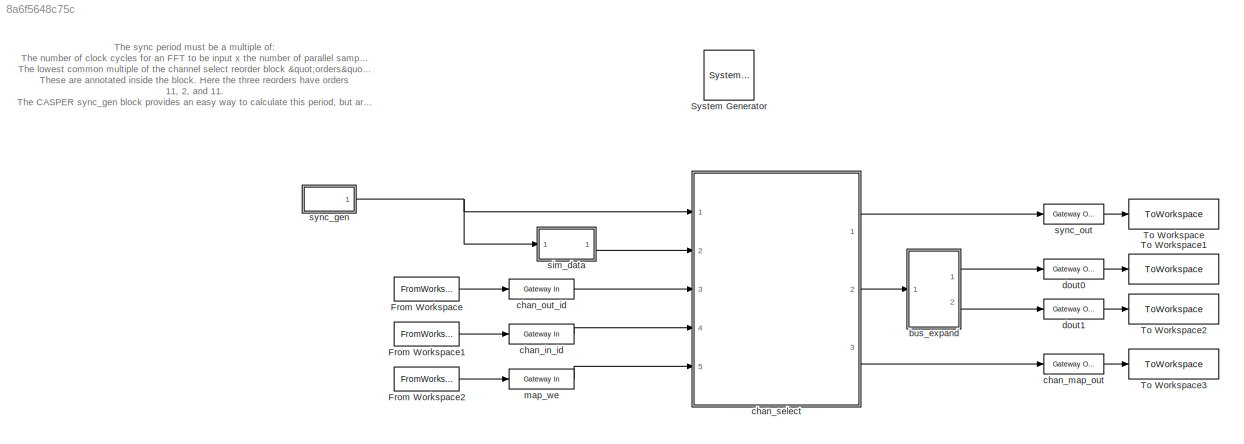
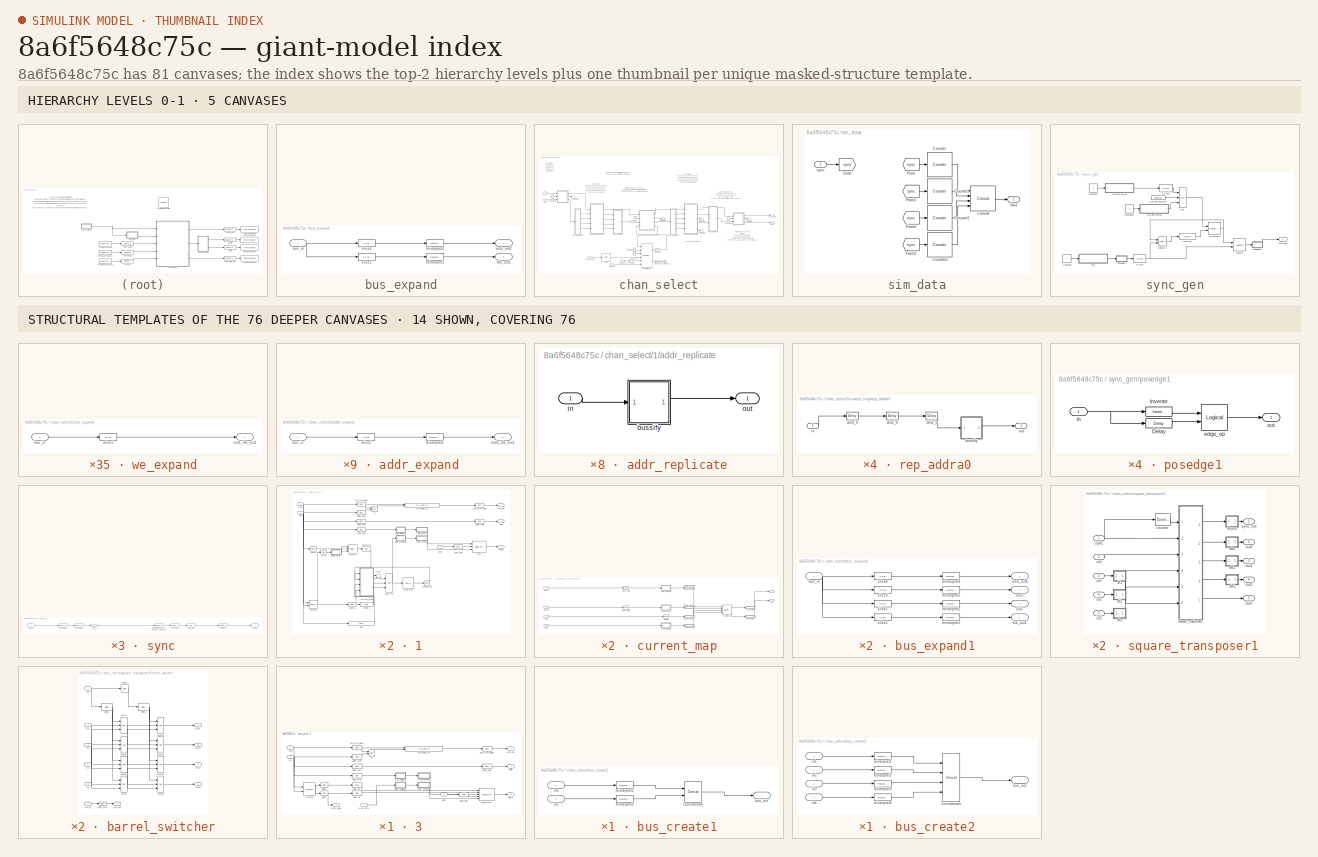
[diagram: thumbnail index - top-2 hierarchy levels (5 canvases) + 14 structural-template representatives of the remaining 76 canvases]
MODEL slx_8a6f5648c75c
KIND model
CONFIG AbsTol = auto
CONFIG EnableMultiTasking = off
CONFIG FixedStep = auto
CONFIG MaxStep = auto
CONFIG MinStep = auto
CONFIG RelTol = 1e-3
CONFIG SampleTimeConstraint = Unconstrained
CONFIG SolverName = VariableStepAuto
CONFIG StartTime = 0.0
CONFIG StopTime = 150000
BLOCK [Reference]  System Generator  REF=xbsIndex_r4/ System Generator
  AttributesFormatString = System\nGenerator
  Ports = []
  SourceBlock = xbsIndex_r4/ System Generator
  SourceProductName = Attempt to write the readonly database <userpath>/.matlab/R2018a/slblocks_master.db. (attempt to write a readonly database)
  SourceType = Xilinx System Generator Block
  Tag = genX
  UserDataPersistent = on
BLOCK [FromWorkspace] From Workspace
  VariableName = chan_out_id
BLOCK [FromWorkspace] From Workspace1
  VariableName = chan_in_id
BLOCK [FromWorkspace] From Workspace2
  VariableName = map_we
BLOCK [ToWorkspace] To Workspace
  FixptAsFi = on
  MaxDataPoints = inf
  Ports = [1]
  SampleTime = -1
  Save2DSignal = 2-D array (concatenate along first dimension)
  SaveFormat = Timeseries
  VariableName = sync_out
BLOCK [ToWorkspace] To Workspace1
  FixptAsFi = on
  MaxDataPoints = inf
  Ports = [1]
  SampleTime = -1
  Save2DSignal = 2-D array (concatenate along first dimension)
  SaveFormat = Timeseries
  VariableName = dout0
BLOCK [ToWorkspace] To Workspace2
  FixptAsFi = on
  MaxDataPoints = inf
  Ports = [1]
  SampleTime = -1
  Save2DSignal = 2-D array (concatenate along first dimension)
  SaveFormat = Timeseries
  VariableName = dout1
BLOCK [ToWorkspace] To Workspace3
  FixptAsFi = on
  MaxDataPoints = inf
  Ports = [1]
  SampleTime = -1
  Save2DSignal = 2-D array (concatenate along first dimension)
  SaveFormat = Timeseries
  VariableName = chan_map
BLOCK [SubSystem] bus_expand
  AncestorBlock = casper_library_flow_control/bus_expand
  AttributesFormatString = 2 outputs
  Ports = [1, 2]
  RequestExecContextInheritance = off
  UserDataPersistent = on
BLOCK [Inport] bus_expand/bus_in
BLOCK [Outport] bus_expand/lsb_out1
  Port = 2
  VectorParamsAs1DForOutWhenUnconnected = off
BLOCK [Outport] bus_expand/msb_out2
  VectorParamsAs1DForOutWhenUnconnected = off
BLOCK [Reference] bus_expand/reinterpret1  REF=xbsIndex_r4/Reinterpret
  Ports = [1, 1]
  SourceBlock = xbsIndex_r4/Reinterpret
  SourceType = Xilinx Type Reinterpreter Block
BLOCK [Reference] bus_expand/reinterpret2  REF=xbsIndex_r4/Reinterpret
  Ports = [1, 1]
  SourceBlock = xbsIndex_r4/Reinterpret
  SourceType = Xilinx Type Reinterpreter Block
BLOCK [Reference] bus_expand/slice1  REF=xbsIndex_r4/Slice
  Ports = [1, 1]
  SourceBlock = xbsIndex_r4/Slice
  SourceType = Xilinx Bit Slice Extractor Block
BLOCK [Reference] bus_expand/slice2  REF=xbsIndex_r4/Slice
  Ports = [1, 1]
  SourceBlock = xbsIndex_r4/Slice
  SourceType = Xilinx Bit Slice Extractor Block
BLOCK [Reference] chan_in_id  REF=xbsIndex_r4/Gateway In
  Ports = [1, 1]
  SourceBlock = xbsIndex_r4/Gateway In
  SourceType = Xilinx Gateway In Block
BLOCK [Reference] chan_map_out  REF=xbsIndex_r4/Gateway Out
  Ports = [1, 1]
  SourceBlock = xbsIndex_r4/Gateway Out
  SourceType = Xilinx Gateway Out Block
BLOCK [Reference] chan_out_id  REF=xbsIndex_r4/Gateway In
  Ports = [1, 1]
  SourceBlock = xbsIndex_r4/Gateway In
  SourceType = Xilinx Gateway In Block
BLOCK [SubSystem] chan_select
  Ports = [5, 3]
  RequestExecContextInheritance = off
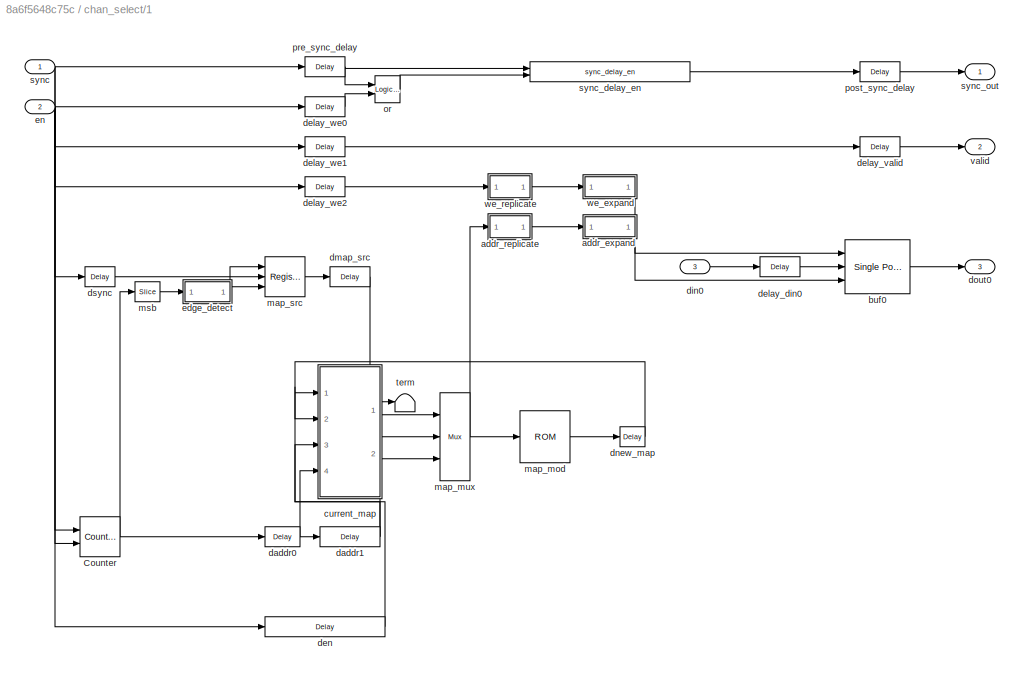
BLOCK [SubSystem] chan_select/1
  AncestorBlock = casper_library_reorder/reorder
  AttributesFormatString = order=11
  Ports = [3, 3]
  RequestExecContextInheritance = off
  UserDataPersistent = on
BLOCK [Reference] chan_select/1/Counter  REF=xbsIndex_r4/Counter
  Ports = [2, 1]
  SourceBlock = xbsIndex_r4/Counter
  SourceType = Xilinx Counter Block
BLOCK [SubSystem] chan_select/1/addr_expand
  AncestorBlock = casper_library_flow_control/bus_expand
  AttributesFormatString = 1 outputs
  Ports = [1, 1]
  RequestExecContextInheritance = off
  UserDataPersistent = on
BLOCK [Inport] chan_select/1/addr_expand/bus_in
BLOCK [Outport] chan_select/1/addr_expand/msb_lsb_out1
BLOCK [Reference] chan_select/1/addr_expand/reinterpret1  REF=xbsIndex_r4/Reinterpret
  Ports = [1, 1]
  SourceBlock = xbsIndex_r4/Reinterpret
  SourceType = Xilinx Type Reinterpreter Block
BLOCK [Reference] chan_select/1/addr_expand/slice1  REF=xbsIndex_r4/Slice
  Ports = [1, 1]
  SourceBlock = xbsIndex_r4/Slice
  SourceType = Xilinx Bit Slice Extractor Block
BLOCK [SubSystem] chan_select/1/addr_replicate
  AncestorBlock = casper_library_bus/bus_replicate
  Ports = [1, 1]
  RequestExecContextInheritance = off
  UserDataPersistent = on
BLOCK [SubSystem] chan_select/1/addr_replicate/bussify
  AncestorBlock = casper_library_flow_control/bus_create
  Ports = [1, 1]
  RequestExecContextInheritance = off
  UserDataPersistent = on
BLOCK [Outport] chan_select/1/addr_replicate/bussify/bus_out
  VectorParamsAs1DForOutWhenUnconnected = off
BLOCK [Inport] chan_select/1/addr_replicate/bussify/in1
BLOCK [Reference] chan_select/1/addr_replicate/bussify/reinterpret1  REF=xbsIndex_r4/Reinterpret
  Ports = [1, 1]
  SourceBlock = xbsIndex_r4/Reinterpret
  SourceType = Xilinx Type Reinterpreter Block
BLOCK [Inport] chan_select/1/addr_replicate/in
BLOCK [Outport] chan_select/1/addr_replicate/out
BLOCK [Reference] chan_select/1/buf0  REF=xbsIndex_r4/Single Port RAM
  Ports = [3, 1]
  SourceBlock = xbsIndex_r4/Single Port RAM
  SourceType = Xilinx Single Port Random Access Memory Block
BLOCK [SubSystem] chan_select/1/current_map
  AncestorBlock = casper_library_bus/bus_dual_port_ram
  Ports = [4, 2]
  RequestExecContextInheritance = off
  UserDataPersistent = on
BLOCK [Outport] chan_select/1/current_map/A
BLOCK [SubSystem] chan_select/1/current_map/A_bussify0
  AncestorBlock = casper_library_flow_control/bus_create
  Ports = [1, 1]
  RequestExecContextInheritance = off
  UserDataPersistent = on
BLOCK [Outport] chan_select/1/current_map/A_bussify0/bus_out
  VectorParamsAs1DForOutWhenUnconnected = off
BLOCK [Inport] chan_select/1/current_map/A_bussify0/in1
BLOCK [Reference] chan_select/1/current_map/A_bussify0/reinterpret1  REF=xbsIndex_r4/Reinterpret
  Ports = [1, 1]
  SourceBlock = xbsIndex_r4/Reinterpret
  SourceType = Xilinx Type Reinterpreter Block
BLOCK [Outport] chan_select/1/current_map/B
  Port = 2
BLOCK [SubSystem] chan_select/1/current_map/B_bussify0
  AncestorBlock = casper_library_flow_control/bus_create
  Ports = [1, 1]
  RequestExecContextInheritance = off
  UserDataPersistent = on
BLOCK [Outport] chan_select/1/current_map/B_bussify0/bus_out
  VectorParamsAs1DForOutWhenUnconnected = off
BLOCK [Inport] chan_select/1/current_map/B_bussify0/in1
BLOCK [Reference] chan_select/1/current_map/B_bussify0/reinterpret1  REF=xbsIndex_r4/Reinterpret
  Ports = [1, 1]
  SourceBlock = xbsIndex_r4/Reinterpret
  SourceType = Xilinx Type Reinterpreter Block
BLOCK [Inport] chan_select/1/current_map/addra
BLOCK [Inport] chan_select/1/current_map/addrb
  Port = 4
BLOCK [Reference] chan_select/1/current_map/alsbs_slice  REF=xbsIndex_r4/Slice
  Ports = [1, 1]
  SourceBlock = xbsIndex_r4/Slice
  SourceType = Xilinx Bit Slice Extractor Block
BLOCK [Reference] chan_select/1/current_map/blsbs_slice  REF=xbsIndex_r4/Slice
  Ports = [1, 1]
  SourceBlock = xbsIndex_r4/Slice
  SourceType = Xilinx Bit Slice Extractor Block
BLOCK [Reference] chan_select/1/current_map/bram0_0  REF=xbsIndex_r4/Dual Port RAM
  Ports = [4, 2]
  SourceBlock = xbsIndex_r4/Dual Port RAM
  SourceType = Xilinx Dual Port Random Access Memory Block
  UserDataPersistent = on
BLOCK [Reference] chan_select/1/current_map/ddina0  REF=xbsIndex_r4/Delay
  Ports = [1, 1]
  SourceBlock = xbsIndex_r4/Delay
  SourceType = Xilinx Delay Block
BLOCK [SubSystem] chan_select/1/current_map/debus_addra0
  AncestorBlock = casper_library_flow_control/bus_expand
  AttributesFormatString = 1 outputs: uf11.0,
  Ports = [1, 1]
  RequestExecContextInheritance = off
  UserDataPersistent = on
BLOCK [Inport] chan_select/1/current_map/debus_addra0/bus_in
BLOCK [Outport] chan_select/1/current_map/debus_addra0/msb_lsb_out1
BLOCK [Reference] chan_select/1/current_map/debus_addra0/reinterpret1  REF=xbsIndex_r4/Reinterpret
  Ports = [1, 1]
  SourceBlock = xbsIndex_r4/Reinterpret
  SourceType = Xilinx Type Reinterpreter Block
BLOCK [Reference] chan_select/1/current_map/debus_addra0/slice1  REF=xbsIndex_r4/Slice
  Ports = [1, 1]
  SourceBlock = xbsIndex_r4/Slice
  SourceType = Xilinx Bit Slice Extractor Block
BLOCK [SubSystem] chan_select/1/current_map/debus_addrb0
  AncestorBlock = casper_library_flow_control/bus_expand
  AttributesFormatString = 1 outputs: uf11.0,
  Ports = [1, 1]
  RequestExecContextInheritance = off
  UserDataPersistent = on
BLOCK [Inport] chan_select/1/current_map/debus_addrb0/bus_in
BLOCK [Outport] chan_select/1/current_map/debus_addrb0/msb_lsb_out1
BLOCK [Reference] chan_select/1/current_map/debus_addrb0/reinterpret1  REF=xbsIndex_r4/Reinterpret
  Ports = [1, 1]
  SourceBlock = xbsIndex_r4/Reinterpret
  SourceType = Xilinx Type Reinterpreter Block
BLOCK [Reference] chan_select/1/current_map/debus_addrb0/slice1  REF=xbsIndex_r4/Slice
  Ports = [1, 1]
  SourceBlock = xbsIndex_r4/Slice
  SourceType = Xilinx Bit Slice Extractor Block
BLOCK [SubSystem] chan_select/1/current_map/debus_dina0
  AncestorBlock = casper_library_flow_control/bus_expand
  AttributesFormatString = 1 outputs: uf11.0,
  Ports = [1, 1]
  RequestExecContextInheritance = off
  UserDataPersistent = on
BLOCK [Inport] chan_select/1/current_map/debus_dina0/bus_in
BLOCK [Outport] chan_select/1/current_map/debus_dina0/msb_lsb_out1
BLOCK [Reference] chan_select/1/current_map/debus_dina0/reinterpret1  REF=xbsIndex_r4/Reinterpret
  Ports = [1, 1]
  SourceBlock = xbsIndex_r4/Reinterpret
  SourceType = Xilinx Type Reinterpreter Block
BLOCK [Reference] chan_select/1/current_map/debus_dina0/slice1  REF=xbsIndex_r4/Slice
  Ports = [1, 1]
  SourceBlock = xbsIndex_r4/Slice
  SourceType = Xilinx Bit Slice Extractor Block
BLOCK [SubSystem] chan_select/1/current_map/debus_wea0
  AncestorBlock = casper_library_flow_control/bus_expand
  AttributesFormatString = 1 outputs: b,
  Ports = [1, 1]
  RequestExecContextInheritance = off
  UserDataPersistent = on
BLOCK [Inport] chan_select/1/current_map/debus_wea0/bus_in
BLOCK [Outport] chan_select/1/current_map/debus_wea0/msb_lsb_out1
BLOCK [Reference] chan_select/1/current_map/debus_wea0/slice1  REF=xbsIndex_r4/Slice
  Ports = [1, 1]
  SourceBlock = xbsIndex_r4/Slice
  SourceType = Xilinx Bit Slice Extractor Block
BLOCK [Inport] chan_select/1/current_map/dina
  Port = 2
BLOCK [SubSystem] chan_select/1/current_map/rep_addra0
  AncestorBlock = casper_library_bus/bus_replicate
  Ports = [1, 1]
  RequestExecContextInheritance = off
  UserDataPersistent = on
BLOCK [SubSystem] chan_select/1/current_map/rep_addra0/bussify
  AncestorBlock = casper_library_flow_control/bus_create
  Ports = [1, 1]
  RequestExecContextInheritance = off
  UserDataPersistent = on
BLOCK [Outport] chan_select/1/current_map/rep_addra0/bussify/bus_out
  VectorParamsAs1DForOutWhenUnconnected = off
BLOCK [Inport] chan_select/1/current_map/rep_addra0/bussify/in1
BLOCK [Reference] chan_select/1/current_map/rep_addra0/bussify/reinterpret1  REF=xbsIndex_r4/Reinterpret
  Ports = [1, 1]
  SourceBlock = xbsIndex_r4/Reinterpret
  SourceType = Xilinx Type Reinterpreter Block
BLOCK [Reference] chan_select/1/current_map/rep_addra0/din0_0  REF=xbsIndex_r4/Delay
  Ports = [1, 1]
  SourceBlock = xbsIndex_r4/Delay
  SourceType = Xilinx Delay Block
BLOCK [Reference] chan_select/1/current_map/rep_addra0/din1_0  REF=xbsIndex_r4/Delay
  Ports = [1, 1]
  SourceBlock = xbsIndex_r4/Delay
  SourceType = Xilinx Delay Block
BLOCK [Reference] chan_select/1/current_map/rep_addra0/din2_0  REF=xbsIndex_r4/Delay
  Ports = [1, 1]
  SourceBlock = xbsIndex_r4/Delay
  SourceType = Xilinx Delay Block
BLOCK [Inport] chan_select/1/current_map/rep_addra0/in
BLOCK [Outport] chan_select/1/current_map/rep_addra0/out
BLOCK [SubSystem] chan_select/1/current_map/rep_addrb0
  AncestorBlock = casper_library_bus/bus_replicate
  Ports = [1, 1]
  RequestExecContextInheritance = off
  UserDataPersistent = on
BLOCK [SubSystem] chan_select/1/current_map/rep_addrb0/bussify
  AncestorBlock = casper_library_flow_control/bus_create
  Ports = [1, 1]
  RequestExecContextInheritance = off
  UserDataPersistent = on
BLOCK [Outport] chan_select/1/current_map/rep_addrb0/bussify/bus_out
  VectorParamsAs1DForOutWhenUnconnected = off
BLOCK [Inport] chan_select/1/current_map/rep_addrb0/bussify/in1
BLOCK [Reference] chan_select/1/current_map/rep_addrb0/bussify/reinterpret1  REF=xbsIndex_r4/Reinterpret
  Ports = [1, 1]
  SourceBlock = xbsIndex_r4/Reinterpret
  SourceType = Xilinx Type Reinterpreter Block
BLOCK [Inport] chan_select/1/current_map/rep_addrb0/in
BLOCK [Outport] chan_select/1/current_map/rep_addrb0/out
BLOCK [SubSystem] chan_select/1/current_map/rep_wea0
  AncestorBlock = casper_library_bus/bus_replicate
  Ports = [1, 1]
  RequestExecContextInheritance = off
  UserDataPersistent = on
BLOCK [SubSystem] chan_select/1/current_map/rep_wea0/bussify
  AncestorBlock = casper_library_flow_control/bus_create
  Ports = [1, 1]
  RequestExecContextInheritance = off
  UserDataPersistent = on
BLOCK [Outport] chan_select/1/current_map/rep_wea0/bussify/bus_out
  VectorParamsAs1DForOutWhenUnconnected = off
BLOCK [Inport] chan_select/1/current_map/rep_wea0/bussify/in1
BLOCK [Reference] chan_select/1/current_map/rep_wea0/bussify/reinterpret1  REF=xbsIndex_r4/Reinterpret
  Ports = [1, 1]
  SourceBlock = xbsIndex_r4/Reinterpret
  SourceType = Xilinx Type Reinterpreter Block
BLOCK [Reference] chan_select/1/current_map/rep_wea0/din0_0  REF=xbsIndex_r4/Delay
  Ports = [1, 1]
  SourceBlock = xbsIndex_r4/Delay
  SourceType = Xilinx Delay Block
BLOCK [Reference] chan_select/1/current_map/rep_wea0/din1_0  REF=xbsIndex_r4/Delay
  Ports = [1, 1]
  SourceBlock = xbsIndex_r4/Delay
  SourceType = Xilinx Delay Block
BLOCK [Reference] chan_select/1/current_map/rep_wea0/din2_0  REF=xbsIndex_r4/Delay
  Ports = [1, 1]
  SourceBlock = xbsIndex_r4/Delay
  SourceType = Xilinx Delay Block
BLOCK [Inport] chan_select/1/current_map/rep_wea0/in
BLOCK [Outport] chan_select/1/current_map/rep_wea0/out
BLOCK [Inport] chan_select/1/current_map/wea
  Port = 3
BLOCK [Reference] chan_select/1/daddr0  REF=xbsIndex_r4/Delay
  Ports = [1, 1]
  SourceBlock = xbsIndex_r4/Delay
  SourceType = Xilinx Delay Block
BLOCK [Reference] chan_select/1/daddr1  REF=xbsIndex_r4/Delay
  Ports = [1, 1]
  SourceBlock = xbsIndex_r4/Delay
  SourceType = Xilinx Delay Block
BLOCK [Reference] chan_select/1/delay_din0  REF=xbsIndex_r4/Delay
  Ports = [1, 1]
  SourceBlock = xbsIndex_r4/Delay
  SourceType = Xilinx Delay Block
BLOCK [Reference] chan_select/1/delay_valid  REF=xbsIndex_r4/Delay
  Ports = [1, 1]
  SourceBlock = xbsIndex_r4/Delay
  SourceType = Xilinx Delay Block
BLOCK [Reference] chan_select/1/delay_we0  REF=xbsIndex_r4/Delay
  Ports = [1, 1]
  SourceBlock = xbsIndex_r4/Delay
  SourceType = Xilinx Delay Block
BLOCK [Reference] chan_select/1/delay_we1  REF=xbsIndex_r4/Delay
  Ports = [1, 1]
  SourceBlock = xbsIndex_r4/Delay
  SourceType = Xilinx Delay Block
BLOCK [Reference] chan_select/1/delay_we2  REF=xbsIndex_r4/Delay
  Ports = [1, 1]
  SourceBlock = xbsIndex_r4/Delay
  SourceType = Xilinx Delay Block
BLOCK [Reference] chan_select/1/den  REF=xbsIndex_r4/Delay
  Ports = [1, 1]
  SourceBlock = xbsIndex_r4/Delay
  SourceType = Xilinx Delay Block
BLOCK [Inport] chan_select/1/din0
  Port = 3
BLOCK [Reference] chan_select/1/dmap_src  REF=xbsIndex_r4/Delay
  Ports = [1, 1]
  SourceBlock = xbsIndex_r4/Delay
  SourceType = Xilinx Delay Block
BLOCK [Reference] chan_select/1/dnew_map  REF=xbsIndex_r4/Delay
  Ports = [1, 1]
  SourceBlock = xbsIndex_r4/Delay
  SourceType = Xilinx Delay Block
BLOCK [Outport] chan_select/1/dout0
  Port = 3
BLOCK [Reference] chan_select/1/dsync  REF=xbsIndex_r4/Delay
  Ports = [1, 1]
  SourceBlock = xbsIndex_r4/Delay
  SourceType = Xilinx Delay Block
BLOCK [SubSystem] chan_select/1/edge_detect
  AncestorBlock = casper_library_misc/edge_detect
  AttributesFormatString = falling edges\nactive high
  Ports = [1, 1]
  RequestExecContextInheritance = off
  UserDataPersistent = on
BLOCK [Reference] chan_select/1/edge_detect/Delay  REF=xbsIndex_r4/Delay
  Ports = [1, 1]
  SourceBlock = xbsIndex_r4/Delay
  SourceType = Xilinx Delay Block
BLOCK [Reference] chan_select/1/edge_detect/Inverter  REF=xbsIndex_r4/Inverter
  Ports = [1, 1]
  SourceBlock = xbsIndex_r4/Inverter
  SourceType = Xilinx Inverter Block
BLOCK [Reference] chan_select/1/edge_detect/edge_op  REF=xbsIndex_r4/Logical
  Ports = [2, 1]
  SourceBlock = xbsIndex_r4/Logical
  SourceType = Xilinx Logical Block Block
BLOCK [Inport] chan_select/1/edge_detect/in
BLOCK [Outport] chan_select/1/edge_detect/out
  VectorParamsAs1DForOutWhenUnconnected = off
BLOCK [Inport] chan_select/1/en
  Port = 2
BLOCK [Reference] chan_select/1/map_mod  REF=xbsIndex_r4/ROM
  Ports = [1, 1]
  SourceBlock = xbsIndex_r4/ROM
  SourceType = Xilinx Single Port Read-Only Memory Block
BLOCK [Reference] chan_select/1/map_mux  REF=xbsIndex_r4/Mux
  Ports = [3, 1]
  SourceBlock = xbsIndex_r4/Mux
  SourceType = Xilinx Bus Multiplexer Block
BLOCK [Reference] chan_select/1/map_src  REF=xbsIndex_r4/Register
  Ports = [3, 1]
  SourceBlock = xbsIndex_r4/Register
  SourceType = Xilinx Register Block
BLOCK [Reference] chan_select/1/msb  REF=xbsIndex_r4/Slice
  Ports = [1, 1]
  SourceBlock = xbsIndex_r4/Slice
  SourceType = Xilinx Bit Slice Extractor Block
BLOCK [Reference] chan_select/1/or  REF=xbsIndex_r4/Logical
  Ports = [2, 1]
  SourceBlock = xbsIndex_r4/Logical
  SourceType = Xilinx Logical Block Block
BLOCK [Reference] chan_select/1/post_sync_delay  REF=xbsIndex_r4/Delay
  Ports = [1, 1]
  SourceBlock = xbsIndex_r4/Delay
  SourceType = Xilinx Delay Block
BLOCK [Reference] chan_select/1/pre_sync_delay  REF=xbsIndex_r4/Delay
  Ports = [1, 1]
  SourceBlock = xbsIndex_r4/Delay
  SourceType = Xilinx Delay Block
BLOCK [Inport] chan_select/1/sync
BLOCK [Reference] chan_select/1/sync_delay_en  REF=casper_library_delays/sync_delay_en  (lib defined in mdl_259a08a3fac5, mdl_65009615caaa, +5 more)
  Ports = [2, 1]
  SourceBlock = casper_library_delays/sync_delay_en
  SourceProductName = CASPER DSP Blockset
  SourceType = sync_delay_en
BLOCK [Outport] chan_select/1/sync_out
BLOCK [Terminator] chan_select/1/term
BLOCK [Outport] chan_select/1/valid
  Port = 2
BLOCK [SubSystem] chan_select/1/we_expand
  AncestorBlock = casper_library_flow_control/bus_expand
  AttributesFormatString = 1 outputs
  Ports = [1, 1]
  RequestExecContextInheritance = off
  UserDataPersistent = on
BLOCK [Inport] chan_select/1/we_expand/bus_in
BLOCK [Outport] chan_select/1/we_expand/msb_lsb_out1
BLOCK [Reference] chan_select/1/we_expand/slice1  REF=xbsIndex_r4/Slice
  Ports = [1, 1]
  SourceBlock = xbsIndex_r4/Slice
  SourceType = Xilinx Bit Slice Extractor Block
BLOCK [SubSystem] chan_select/1/we_replicate
  AncestorBlock = casper_library_bus/bus_replicate
  Ports = [1, 1]
  RequestExecContextInheritance = off
  UserDataPersistent = on
BLOCK [SubSystem] chan_select/1/we_replicate/bussify
  AncestorBlock = casper_library_flow_control/bus_create
  Ports = [1, 1]
  RequestExecContextInheritance = off
  UserDataPersistent = on
BLOCK [Outport] chan_select/1/we_replicate/bussify/bus_out
  VectorParamsAs1DForOutWhenUnconnected = off
BLOCK [Inport] chan_select/1/we_replicate/bussify/in1
BLOCK [Reference] chan_select/1/we_replicate/bussify/reinterpret1  REF=xbsIndex_r4/Reinterpret
  Ports = [1, 1]
  SourceBlock = xbsIndex_r4/Reinterpret
  SourceType = Xilinx Type Reinterpreter Block
BLOCK [Inport] chan_select/1/we_replicate/in
BLOCK [Outport] chan_select/1/we_replicate/out
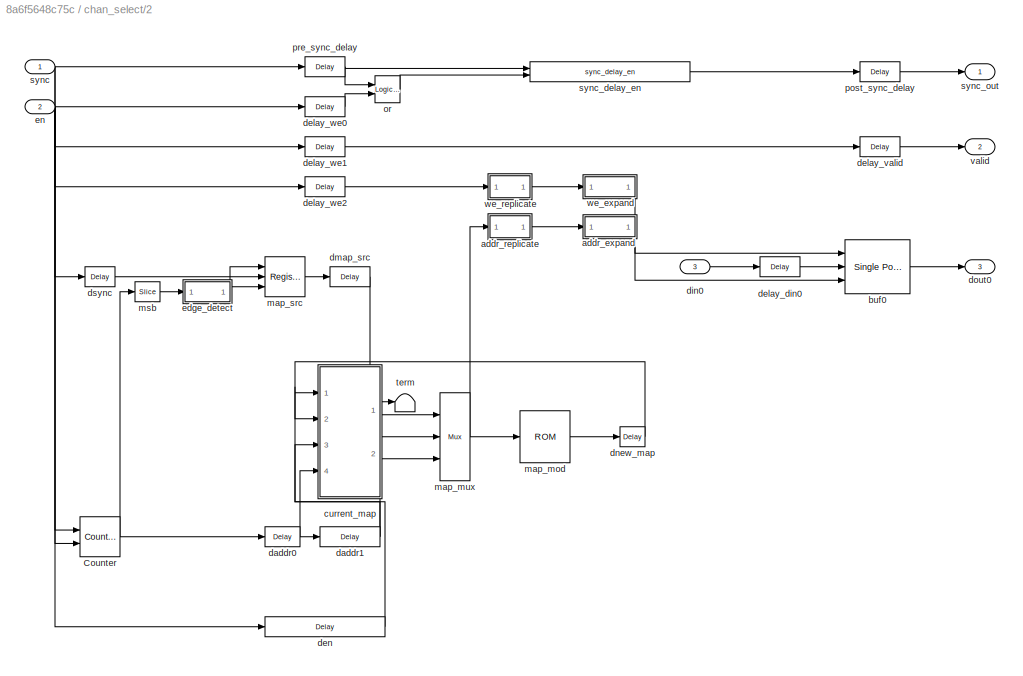
BLOCK [SubSystem] chan_select/2
  AncestorBlock = casper_library_reorder/reorder
  AttributesFormatString = order=11
  Ports = [3, 3]
  RequestExecContextInheritance = off
  UserDataPersistent = on
BLOCK [Reference] chan_select/2/Counter  REF=xbsIndex_r4/Counter
  Ports = [2, 1]
  SourceBlock = xbsIndex_r4/Counter
  SourceType = Xilinx Counter Block
BLOCK [SubSystem] chan_select/2/addr_expand
  AncestorBlock = casper_library_flow_control/bus_expand
  AttributesFormatString = 1 outputs
  Ports = [1, 1]
  RequestExecContextInheritance = off
  UserDataPersistent = on
BLOCK [Inport] chan_select/2/addr_expand/bus_in
BLOCK [Outport] chan_select/2/addr_expand/msb_lsb_out1
BLOCK [Reference] chan_select/2/addr_expand/reinterpret1  REF=xbsIndex_r4/Reinterpret
  Ports = [1, 1]
  SourceBlock = xbsIndex_r4/Reinterpret
  SourceType = Xilinx Type Reinterpreter Block
BLOCK [Reference] chan_select/2/addr_expand/slice1  REF=xbsIndex_r4/Slice
  Ports = [1, 1]
  SourceBlock = xbsIndex_r4/Slice
  SourceType = Xilinx Bit Slice Extractor Block
BLOCK [SubSystem] chan_select/2/addr_replicate
  AncestorBlock = casper_library_bus/bus_replicate
  Ports = [1, 1]
  RequestExecContextInheritance = off
  UserDataPersistent = on
BLOCK [SubSystem] chan_select/2/addr_replicate/bussify
  AncestorBlock = casper_library_flow_control/bus_create
  Ports = [1, 1]
  RequestExecContextInheritance = off
  UserDataPersistent = on
BLOCK [Outport] chan_select/2/addr_replicate/bussify/bus_out
  VectorParamsAs1DForOutWhenUnconnected = off
BLOCK [Inport] chan_select/2/addr_replicate/bussify/in1
BLOCK [Reference] chan_select/2/addr_replicate/bussify/reinterpret1  REF=xbsIndex_r4/Reinterpret
  Ports = [1, 1]
  SourceBlock = xbsIndex_r4/Reinterpret
  SourceType = Xilinx Type Reinterpreter Block
BLOCK [Inport] chan_select/2/addr_replicate/in
BLOCK [Outport] chan_select/2/addr_replicate/out
BLOCK [Reference] chan_select/2/buf0  REF=xbsIndex_r4/Single Port RAM
  Ports = [3, 1]
  SourceBlock = xbsIndex_r4/Single Port RAM
  SourceType = Xilinx Single Port Random Access Memory Block
BLOCK [SubSystem] chan_select/2/current_map
  AncestorBlock = casper_library_bus/bus_dual_port_ram
  Ports = [4, 2]
  RequestExecContextInheritance = off
  UserDataPersistent = on
BLOCK [Outport] chan_select/2/current_map/A
BLOCK [SubSystem] chan_select/2/current_map/A_bussify0
  AncestorBlock = casper_library_flow_control/bus_create
  Ports = [1, 1]
  RequestExecContextInheritance = off
  UserDataPersistent = on
BLOCK [Outport] chan_select/2/current_map/A_bussify0/bus_out
  VectorParamsAs1DForOutWhenUnconnected = off
BLOCK [Inport] chan_select/2/current_map/A_bussify0/in1
BLOCK [Reference] chan_select/2/current_map/A_bussify0/reinterpret1  REF=xbsIndex_r4/Reinterpret
  Ports = [1, 1]
  SourceBlock = xbsIndex_r4/Reinterpret
  SourceType = Xilinx Type Reinterpreter Block
BLOCK [Outport] chan_select/2/current_map/B
  Port = 2
BLOCK [SubSystem] chan_select/2/current_map/B_bussify0
  AncestorBlock = casper_library_flow_control/bus_create
  Ports = [1, 1]
  RequestExecContextInheritance = off
  UserDataPersistent = on
BLOCK [Outport] chan_select/2/current_map/B_bussify0/bus_out
  VectorParamsAs1DForOutWhenUnconnected = off
BLOCK [Inport] chan_select/2/current_map/B_bussify0/in1
BLOCK [Reference] chan_select/2/current_map/B_bussify0/reinterpret1  REF=xbsIndex_r4/Reinterpret
  Ports = [1, 1]
  SourceBlock = xbsIndex_r4/Reinterpret
  SourceType = Xilinx Type Reinterpreter Block
BLOCK [Inport] chan_select/2/current_map/addra
BLOCK [Inport] chan_select/2/current_map/addrb
  Port = 4
BLOCK [Reference] chan_select/2/current_map/alsbs_slice  REF=xbsIndex_r4/Slice
  Ports = [1, 1]
  SourceBlock = xbsIndex_r4/Slice
  SourceType = Xilinx Bit Slice Extractor Block
BLOCK [Reference] chan_select/2/current_map/blsbs_slice  REF=xbsIndex_r4/Slice
  Ports = [1, 1]
  SourceBlock = xbsIndex_r4/Slice
  SourceType = Xilinx Bit Slice Extractor Block
BLOCK [Reference] chan_select/2/current_map/bram0_0  REF=xbsIndex_r4/Dual Port RAM
  Ports = [4, 2]
  SourceBlock = xbsIndex_r4/Dual Port RAM
  SourceType = Xilinx Dual Port Random Access Memory Block
  UserDataPersistent = on
BLOCK [Reference] chan_select/2/current_map/ddina0  REF=xbsIndex_r4/Delay
  Ports = [1, 1]
  SourceBlock = xbsIndex_r4/Delay
  SourceType = Xilinx Delay Block
BLOCK [SubSystem] chan_select/2/current_map/debus_addra0
  AncestorBlock = casper_library_flow_control/bus_expand
  AttributesFormatString = 1 outputs: uf11.0,
  Ports = [1, 1]
  RequestExecContextInheritance = off
  UserDataPersistent = on
BLOCK [Inport] chan_select/2/current_map/debus_addra0/bus_in
BLOCK [Outport] chan_select/2/current_map/debus_addra0/msb_lsb_out1
BLOCK [Reference] chan_select/2/current_map/debus_addra0/reinterpret1  REF=xbsIndex_r4/Reinterpret
  Ports = [1, 1]
  SourceBlock = xbsIndex_r4/Reinterpret
  SourceType = Xilinx Type Reinterpreter Block
BLOCK [Reference] chan_select/2/current_map/debus_addra0/slice1  REF=xbsIndex_r4/Slice
  Ports = [1, 1]
  SourceBlock = xbsIndex_r4/Slice
  SourceType = Xilinx Bit Slice Extractor Block
BLOCK [SubSystem] chan_select/2/current_map/debus_addrb0
  AncestorBlock = casper_library_flow_control/bus_expand
  AttributesFormatString = 1 outputs: uf11.0,
  Ports = [1, 1]
  RequestExecContextInheritance = off
  UserDataPersistent = on
BLOCK [Inport] chan_select/2/current_map/debus_addrb0/bus_in
BLOCK [Outport] chan_select/2/current_map/debus_addrb0/msb_lsb_out1
BLOCK [Reference] chan_select/2/current_map/debus_addrb0/reinterpret1  REF=xbsIndex_r4/Reinterpret
  Ports = [1, 1]
  SourceBlock = xbsIndex_r4/Reinterpret
  SourceType = Xilinx Type Reinterpreter Block
BLOCK [Reference] chan_select/2/current_map/debus_addrb0/slice1  REF=xbsIndex_r4/Slice
  Ports = [1, 1]
  SourceBlock = xbsIndex_r4/Slice
  SourceType = Xilinx Bit Slice Extractor Block
BLOCK [SubSystem] chan_select/2/current_map/debus_dina0
  AncestorBlock = casper_library_flow_control/bus_expand
  AttributesFormatString = 1 outputs: uf11.0,
  Ports = [1, 1]
  RequestExecContextInheritance = off
  UserDataPersistent = on
BLOCK [Inport] chan_select/2/current_map/debus_dina0/bus_in
BLOCK [Outport] chan_select/2/current_map/debus_dina0/msb_lsb_out1
BLOCK [Reference] chan_select/2/current_map/debus_dina0/reinterpret1  REF=xbsIndex_r4/Reinterpret
  Ports = [1, 1]
  SourceBlock = xbsIndex_r4/Reinterpret
  SourceType = Xilinx Type Reinterpreter Block
BLOCK [Reference] chan_select/2/current_map/debus_dina0/slice1  REF=xbsIndex_r4/Slice
  Ports = [1, 1]
  SourceBlock = xbsIndex_r4/Slice
  SourceType = Xilinx Bit Slice Extractor Block
BLOCK [SubSystem] chan_select/2/current_map/debus_wea0
  AncestorBlock = casper_library_flow_control/bus_expand
  AttributesFormatString = 1 outputs: b,
  Ports = [1, 1]
  RequestExecContextInheritance = off
  UserDataPersistent = on
BLOCK [Inport] chan_select/2/current_map/debus_wea0/bus_in
BLOCK [Outport] chan_select/2/current_map/debus_wea0/msb_lsb_out1
BLOCK [Reference] chan_select/2/current_map/debus_wea0/slice1  REF=xbsIndex_r4/Slice
  Ports = [1, 1]
  SourceBlock = xbsIndex_r4/Slice
  SourceType = Xilinx Bit Slice Extractor Block
BLOCK [Inport] chan_select/2/current_map/dina
  Port = 2
BLOCK [SubSystem] chan_select/2/current_map/rep_addra0
  AncestorBlock = casper_library_bus/bus_replicate
  Ports = [1, 1]
  RequestExecContextInheritance = off
  UserDataPersistent = on
BLOCK [SubSystem] chan_select/2/current_map/rep_addra0/bussify
  AncestorBlock = casper_library_flow_control/bus_create
  Ports = [1, 1]
  RequestExecContextInheritance = off
  UserDataPersistent = on
BLOCK [Outport] chan_select/2/current_map/rep_addra0/bussify/bus_out
  VectorParamsAs1DForOutWhenUnconnected = off
BLOCK [Inport] chan_select/2/current_map/rep_addra0/bussify/in1
BLOCK [Reference] chan_select/2/current_map/rep_addra0/bussify/reinterpret1  REF=xbsIndex_r4/Reinterpret
  Ports = [1, 1]
  SourceBlock = xbsIndex_r4/Reinterpret
  SourceType = Xilinx Type Reinterpreter Block
BLOCK [Reference] chan_select/2/current_map/rep_addra0/din0_0  REF=xbsIndex_r4/Delay
  Ports = [1, 1]
  SourceBlock = xbsIndex_r4/Delay
  SourceType = Xilinx Delay Block
BLOCK [Reference] chan_select/2/current_map/rep_addra0/din1_0  REF=xbsIndex_r4/Delay
  Ports = [1, 1]
  SourceBlock = xbsIndex_r4/Delay
  SourceType = Xilinx Delay Block
BLOCK [Reference] chan_select/2/current_map/rep_addra0/din2_0  REF=xbsIndex_r4/Delay
  Ports = [1, 1]
  SourceBlock = xbsIndex_r4/Delay
  SourceType = Xilinx Delay Block
BLOCK [Inport] chan_select/2/current_map/rep_addra0/in
BLOCK [Outport] chan_select/2/current_map/rep_addra0/out
BLOCK [SubSystem] chan_select/2/current_map/rep_addrb0
  AncestorBlock = casper_library_bus/bus_replicate
  Ports = [1, 1]
  RequestExecContextInheritance = off
  UserDataPersistent = on
BLOCK [SubSystem] chan_select/2/current_map/rep_addrb0/bussify
  AncestorBlock = casper_library_flow_control/bus_create
  Ports = [1, 1]
  RequestExecContextInheritance = off
  UserDataPersistent = on
BLOCK [Outport] chan_select/2/current_map/rep_addrb0/bussify/bus_out
  VectorParamsAs1DForOutWhenUnconnected = off
BLOCK [Inport] chan_select/2/current_map/rep_addrb0/bussify/in1
BLOCK [Reference] chan_select/2/current_map/rep_addrb0/bussify/reinterpret1  REF=xbsIndex_r4/Reinterpret
  Ports = [1, 1]
  SourceBlock = xbsIndex_r4/Reinterpret
  SourceType = Xilinx Type Reinterpreter Block
BLOCK [Inport] chan_select/2/current_map/rep_addrb0/in
BLOCK [Outport] chan_select/2/current_map/rep_addrb0/out
BLOCK [SubSystem] chan_select/2/current_map/rep_wea0
  AncestorBlock = casper_library_bus/bus_replicate
  Ports = [1, 1]
  RequestExecContextInheritance = off
  UserDataPersistent = on
BLOCK [SubSystem] chan_select/2/current_map/rep_wea0/bussify
  AncestorBlock = casper_library_flow_control/bus_create
  Ports = [1, 1]
  RequestExecContextInheritance = off
  UserDataPersistent = on
BLOCK [Outport] chan_select/2/current_map/rep_wea0/bussify/bus_out
  VectorParamsAs1DForOutWhenUnconnected = off
BLOCK [Inport] chan_select/2/current_map/rep_wea0/bussify/in1
BLOCK [Reference] chan_select/2/current_map/rep_wea0/bussify/reinterpret1  REF=xbsIndex_r4/Reinterpret
  Ports = [1, 1]
  SourceBlock = xbsIndex_r4/Reinterpret
  SourceType = Xilinx Type Reinterpreter Block
BLOCK [Reference] chan_select/2/current_map/rep_wea0/din0_0  REF=xbsIndex_r4/Delay
  Ports = [1, 1]
  SourceBlock = xbsIndex_r4/Delay
  SourceType = Xilinx Delay Block
BLOCK [Reference] chan_select/2/current_map/rep_wea0/din1_0  REF=xbsIndex_r4/Delay
  Ports = [1, 1]
  SourceBlock = xbsIndex_r4/Delay
  SourceType = Xilinx Delay Block
BLOCK [Reference] chan_select/2/current_map/rep_wea0/din2_0  REF=xbsIndex_r4/Delay
  Ports = [1, 1]
  SourceBlock = xbsIndex_r4/Delay
  SourceType = Xilinx Delay Block
BLOCK [Inport] chan_select/2/current_map/rep_wea0/in
BLOCK [Outport] chan_select/2/current_map/rep_wea0/out
BLOCK [Inport] chan_select/2/current_map/wea
  Port = 3
BLOCK [Reference] chan_select/2/daddr0  REF=xbsIndex_r4/Delay
  Ports = [1, 1]
  SourceBlock = xbsIndex_r4/Delay
  SourceType = Xilinx Delay Block
BLOCK [Reference] chan_select/2/daddr1  REF=xbsIndex_r4/Delay
  Ports = [1, 1]
  SourceBlock = xbsIndex_r4/Delay
  SourceType = Xilinx Delay Block
BLOCK [Reference] chan_select/2/delay_din0  REF=xbsIndex_r4/Delay
  Ports = [1, 1]
  SourceBlock = xbsIndex_r4/Delay
  SourceType = Xilinx Delay Block
BLOCK [Reference] chan_select/2/delay_valid  REF=xbsIndex_r4/Delay
  Ports = [1, 1]
  SourceBlock = xbsIndex_r4/Delay
  SourceType = Xilinx Delay Block
BLOCK [Reference] chan_select/2/delay_we0  REF=xbsIndex_r4/Delay
  Ports = [1, 1]
  SourceBlock = xbsIndex_r4/Delay
  SourceType = Xilinx Delay Block
BLOCK [Reference] chan_select/2/delay_we1  REF=xbsIndex_r4/Delay
  Ports = [1, 1]
  SourceBlock = xbsIndex_r4/Delay
  SourceType = Xilinx Delay Block
BLOCK [Reference] chan_select/2/delay_we2  REF=xbsIndex_r4/Delay
  Ports = [1, 1]
  SourceBlock = xbsIndex_r4/Delay
  SourceType = Xilinx Delay Block
BLOCK [Reference] chan_select/2/den  REF=xbsIndex_r4/Delay
  Ports = [1, 1]
  SourceBlock = xbsIndex_r4/Delay
  SourceType = Xilinx Delay Block
BLOCK [Inport] chan_select/2/din0
  Port = 3
BLOCK [Reference] chan_select/2/dmap_src  REF=xbsIndex_r4/Delay
  Ports = [1, 1]
  SourceBlock = xbsIndex_r4/Delay
  SourceType = Xilinx Delay Block
BLOCK [Reference] chan_select/2/dnew_map  REF=xbsIndex_r4/Delay
  Ports = [1, 1]
  SourceBlock = xbsIndex_r4/Delay
  SourceType = Xilinx Delay Block
BLOCK [Outport] chan_select/2/dout0
  Port = 3
BLOCK [Reference] chan_select/2/dsync  REF=xbsIndex_r4/Delay
  Ports = [1, 1]
  SourceBlock = xbsIndex_r4/Delay
  SourceType = Xilinx Delay Block
BLOCK [SubSystem] chan_select/2/edge_detect
  AncestorBlock = casper_library_misc/edge_detect
  AttributesFormatString = falling edges\nactive high
  Ports = [1, 1]
  RequestExecContextInheritance = off
  UserDataPersistent = on
BLOCK [Reference] chan_select/2/edge_detect/Delay  REF=xbsIndex_r4/Delay
  Ports = [1, 1]
  SourceBlock = xbsIndex_r4/Delay
  SourceType = Xilinx Delay Block
BLOCK [Reference] chan_select/2/edge_detect/Inverter  REF=xbsIndex_r4/Inverter
  Ports = [1, 1]
  SourceBlock = xbsIndex_r4/Inverter
  SourceType = Xilinx Inverter Block
BLOCK [Reference] chan_select/2/edge_detect/edge_op  REF=xbsIndex_r4/Logical
  Ports = [2, 1]
  SourceBlock = xbsIndex_r4/Logical
  SourceType = Xilinx Logical Block Block
BLOCK [Inport] chan_select/2/edge_detect/in
BLOCK [Outport] chan_select/2/edge_detect/out
  VectorParamsAs1DForOutWhenUnconnected = off
BLOCK [Inport] chan_select/2/en
  Port = 2
BLOCK [Reference] chan_select/2/map_mod  REF=xbsIndex_r4/ROM
  Ports = [1, 1]
  SourceBlock = xbsIndex_r4/ROM
  SourceType = Xilinx Single Port Read-Only Memory Block
BLOCK [Reference] chan_select/2/map_mux  REF=xbsIndex_r4/Mux
  Ports = [3, 1]
  SourceBlock = xbsIndex_r4/Mux
  SourceType = Xilinx Bus Multiplexer Block
BLOCK [Reference] chan_select/2/map_src  REF=xbsIndex_r4/Register
  Ports = [3, 1]
  SourceBlock = xbsIndex_r4/Register
  SourceType = Xilinx Register Block
BLOCK [Reference] chan_select/2/msb  REF=xbsIndex_r4/Slice
  Ports = [1, 1]
  SourceBlock = xbsIndex_r4/Slice
  SourceType = Xilinx Bit Slice Extractor Block
BLOCK [Reference] chan_select/2/or  REF=xbsIndex_r4/Logical
  Ports = [2, 1]
  SourceBlock = xbsIndex_r4/Logical
  SourceType = Xilinx Logical Block Block
BLOCK [Reference] chan_select/2/post_sync_delay  REF=xbsIndex_r4/Delay
  Ports = [1, 1]
  SourceBlock = xbsIndex_r4/Delay
  SourceType = Xilinx Delay Block
BLOCK [Reference] chan_select/2/pre_sync_delay  REF=xbsIndex_r4/Delay
  Ports = [1, 1]
  SourceBlock = xbsIndex_r4/Delay
  SourceType = Xilinx Delay Block
BLOCK [Inport] chan_select/2/sync
BLOCK [Reference] chan_select/2/sync_delay_en  REF=casper_library_delays/sync_delay_en  (lib defined in mdl_259a08a3fac5, mdl_65009615caaa, +5 more)
  Ports = [2, 1]
  SourceBlock = casper_library_delays/sync_delay_en
  SourceProductName = CASPER DSP Blockset
  SourceType = sync_delay_en
BLOCK [Outport] chan_select/2/sync_out
BLOCK [Terminator] chan_select/2/term
BLOCK [Outport] chan_select/2/valid
  Port = 2
BLOCK [SubSystem] chan_select/2/we_expand
  AncestorBlock = casper_library_flow_control/bus_expand
  AttributesFormatString = 1 outputs
  Ports = [1, 1]
  RequestExecContextInheritance = off
  UserDataPersistent = on
BLOCK [Inport] chan_select/2/we_expand/bus_in
BLOCK [Outport] chan_select/2/we_expand/msb_lsb_out1
BLOCK [Reference] chan_select/2/we_expand/slice1  REF=xbsIndex_r4/Slice
  Ports = [1, 1]
  SourceBlock = xbsIndex_r4/Slice
  SourceType = Xilinx Bit Slice Extractor Block
BLOCK [SubSystem] chan_select/2/we_replicate
  AncestorBlock = casper_library_bus/bus_replicate
  Ports = [1, 1]
  RequestExecContextInheritance = off
  UserDataPersistent = on
BLOCK [SubSystem] chan_select/2/we_replicate/bussify
  AncestorBlock = casper_library_flow_control/bus_create
  Ports = [1, 1]
  RequestExecContextInheritance = off
  UserDataPersistent = on
BLOCK [Outport] chan_select/2/we_replicate/bussify/bus_out
  VectorParamsAs1DForOutWhenUnconnected = off
BLOCK [Inport] chan_select/2/we_replicate/bussify/in1
BLOCK [Reference] chan_select/2/we_replicate/bussify/reinterpret1  REF=xbsIndex_r4/Reinterpret
  Ports = [1, 1]
  SourceBlock = xbsIndex_r4/Reinterpret
  SourceType = Xilinx Type Reinterpreter Block
BLOCK [Inport] chan_select/2/we_replicate/in
BLOCK [Outport] chan_select/2/we_replicate/out
BLOCK [SubSystem] chan_select/3
  AncestorBlock = casper_library_reorder/reorder
  AttributesFormatString = order=2
  Ports = [4, 4]
  RequestExecContextInheritance = off
  UserDataPersistent = on
BLOCK [Reference] chan_select/3/Counter  REF=xbsIndex_r4/Counter
  Ports = [2, 1]
  SourceBlock = xbsIndex_r4/Counter
  SourceType = Xilinx Counter Block
BLOCK [Reference] chan_select/3/Slice1  REF=xbsIndex_r4/Slice
  Ports = [1, 1]
  SourceBlock = xbsIndex_r4/Slice
  SourceType = Xilinx Bit Slice Extractor Block
BLOCK [Reference] chan_select/3/Slice2  REF=xbsIndex_r4/Slice
  Ports = [1, 1]
  SourceBlock = xbsIndex_r4/Slice
  SourceType = Xilinx Bit Slice Extractor Block
BLOCK [SubSystem] chan_select/3/addr_expand
  AncestorBlock = casper_library_flow_control/bus_expand
  AttributesFormatString = 1 outputs
  Ports = [1, 1]
  RequestExecContextInheritance = off
  UserDataPersistent = on
BLOCK [Inport] chan_select/3/addr_expand/bus_in
BLOCK [Outport] chan_select/3/addr_expand/msb_lsb_out1
BLOCK [Reference] chan_select/3/addr_expand/reinterpret1  REF=xbsIndex_r4/Reinterpret
  Ports = [1, 1]
  SourceBlock = xbsIndex_r4/Reinterpret
  SourceType = Xilinx Type Reinterpreter Block
BLOCK [Reference] chan_select/3/addr_expand/slice1  REF=xbsIndex_r4/Slice
  Ports = [1, 1]
  SourceBlock = xbsIndex_r4/Slice
  SourceType = Xilinx Bit Slice Extractor Block
BLOCK [SubSystem] chan_select/3/addr_replicate
  AncestorBlock = casper_library_bus/bus_replicate
  Ports = [1, 1]
  RequestExecContextInheritance = off
  UserDataPersistent = on
BLOCK [SubSystem] chan_select/3/addr_replicate/bussify
  AncestorBlock = casper_library_flow_control/bus_create
  Ports = [1, 1]
  RequestExecContextInheritance = off
  UserDataPersistent = on
BLOCK [Outport] chan_select/3/addr_replicate/bussify/bus_out
  VectorParamsAs1DForOutWhenUnconnected = off
BLOCK [Inport] chan_select/3/addr_replicate/bussify/in1
BLOCK [Reference] chan_select/3/addr_replicate/bussify/reinterpret1  REF=xbsIndex_r4/Reinterpret
  Ports = [1, 1]
  SourceBlock = xbsIndex_r4/Reinterpret
  SourceType = Xilinx Type Reinterpreter Block
BLOCK [Inport] chan_select/3/addr_replicate/in
BLOCK [Outport] chan_select/3/addr_replicate/out
BLOCK [Outport] chan_select/3/bram_addr
  Port = 4
BLOCK [Inport] chan_select/3/bram_data
  Port = 4
BLOCK [Reference] chan_select/3/dbl_buffer0  REF=casper_library_reorder/dbl_buffer  (lib defined in mdl_5689982e332f, mdl_a083f2517144, +1 more)
  Ports = [5, 1]
  SourceBlock = casper_library_reorder/dbl_buffer
  SourceProductName = CASPER DSP Blockset
  SourceType = dbl_buffer
BLOCK [Reference] chan_select/3/delay_d0  REF=xbsIndex_r4/Delay
  Ports = [1, 1]
  SourceBlock = xbsIndex_r4/Delay
  SourceType = Xilinx Delay Block
BLOCK [Reference] chan_select/3/delay_din0  REF=xbsIndex_r4/Delay
  Ports = [1, 1]
  SourceBlock = xbsIndex_r4/Delay
  SourceType = Xilinx Delay Block
BLOCK [Reference] chan_select/3/delay_sel  REF=xbsIndex_r4/Delay
  Ports = [1, 1]
  SourceBlock = xbsIndex_r4/Delay
  SourceType = Xilinx Delay Block
BLOCK [Reference] chan_select/3/delay_valid  REF=xbsIndex_r4/Delay
  Ports = [1, 1]
  SourceBlock = xbsIndex_r4/Delay
  SourceType = Xilinx Delay Block
BLOCK [Reference] chan_select/3/delay_we0  REF=xbsIndex_r4/Delay
  Ports = [1, 1]
  SourceBlock = xbsIndex_r4/Delay
  SourceType = Xilinx Delay Block
BLOCK [Reference] chan_select/3/delay_we1  REF=xbsIndex_r4/Delay
  Ports = [1, 1]
  SourceBlock = xbsIndex_r4/Delay
  SourceType = Xilinx Delay Block
BLOCK [Reference] chan_select/3/delay_we2  REF=xbsIndex_r4/Delay
  Ports = [1, 1]
  SourceBlock = xbsIndex_r4/Delay
  SourceType = Xilinx Delay Block
BLOCK [Inport] chan_select/3/din0
  Port = 3
BLOCK [Outport] chan_select/3/dout0
  Port = 3
BLOCK [Inport] chan_select/3/en
  Port = 2
BLOCK [Reference] chan_select/3/or  REF=xbsIndex_r4/Logical
  Ports = [2, 1]
  SourceBlock = xbsIndex_r4/Logical
  SourceType = Xilinx Logical Block Block
BLOCK [Reference] chan_select/3/post_sync_delay  REF=xbsIndex_r4/Delay
  Ports = [1, 1]
  SourceBlock = xbsIndex_r4/Delay
  SourceType = Xilinx Delay Block
BLOCK [Reference] chan_select/3/pre_sync_delay  REF=xbsIndex_r4/Delay
  Ports = [1, 1]
  SourceBlock = xbsIndex_r4/Delay
  SourceType = Xilinx Delay Block
BLOCK [Inport] chan_select/3/sync
BLOCK [Reference] chan_select/3/sync_delay_en  REF=casper_library_delays/sync_delay_en  (lib defined in mdl_259a08a3fac5, mdl_65009615caaa, +5 more)
  Ports = [2, 1]
  SourceBlock = casper_library_delays/sync_delay_en
  SourceProductName = CASPER DSP Blockset
  SourceType = sync_delay_en
BLOCK [Outport] chan_select/3/sync_out
BLOCK [Outport] chan_select/3/valid
  Port = 2
BLOCK [SubSystem] chan_select/3/we_expand
  AncestorBlock = casper_library_flow_control/bus_expand
  AttributesFormatString = 1 outputs
  Ports = [1, 1]
  RequestExecContextInheritance = off
  UserDataPersistent = on
BLOCK [Inport] chan_select/3/we_expand/bus_in
BLOCK [Outport] chan_select/3/we_expand/msb_lsb_out1
BLOCK [Reference] chan_select/3/we_expand/slice1  REF=xbsIndex_r4/Slice
  Ports = [1, 1]
  SourceBlock = xbsIndex_r4/Slice
  SourceType = Xilinx Bit Slice Extractor Block
BLOCK [SubSystem] chan_select/3/we_replicate
  AncestorBlock = casper_library_bus/bus_replicate
  Ports = [1, 1]
  RequestExecContextInheritance = off
  UserDataPersistent = on
BLOCK [SubSystem] chan_select/3/we_replicate/bussify
  AncestorBlock = casper_library_flow_control/bus_create
  Ports = [1, 1]
  RequestExecContextInheritance = off
  UserDataPersistent = on
BLOCK [Outport] chan_select/3/we_replicate/bussify/bus_out
  VectorParamsAs1DForOutWhenUnconnected = off
BLOCK [Inport] chan_select/3/we_replicate/bussify/in1
BLOCK [Reference] chan_select/3/we_replicate/bussify/reinterpret1  REF=xbsIndex_r4/Reinterpret
  Ports = [1, 1]
  SourceBlock = xbsIndex_r4/Reinterpret
  SourceType = Xilinx Type Reinterpreter Block
BLOCK [Inport] chan_select/3/we_replicate/in
BLOCK [Outport] chan_select/3/we_replicate/out
BLOCK [Reference] chan_select/Constant1  REF=xbsIndex_r4/Constant
  Ports = [0, 1]
  SourceBlock = xbsIndex_r4/Constant
  SourceType = Xilinx Constant Block Block
BLOCK [Reference] chan_select/Constant2  REF=xbsIndex_r4/Constant
  Ports = [0, 1]
  SourceBlock = xbsIndex_r4/Constant
  SourceType = Xilinx Constant Block Block
BLOCK [Reference] chan_select/Constant3  REF=xbsIndex_r4/Constant
  Ports = [0, 1]
  SourceBlock = xbsIndex_r4/Constant
  SourceType = Xilinx Constant Block Block
BLOCK [Reference] chan_select/Constant4  REF=xbsIndex_r4/Constant
  Ports = [0, 1]
  SourceBlock = xbsIndex_r4/Constant
  SourceType = Xilinx Constant Block Block
BLOCK [Reference] chan_select/Constant5  REF=xbsIndex_r4/Constant
  Ports = [0, 1]
  SourceBlock = xbsIndex_r4/Constant
  SourceType = Xilinx Constant Block Block
BLOCK [Reference] chan_select/Convert  REF=xbsIndex_r4/Convert
  Ports = [1, 1]
  SourceBlock = xbsIndex_r4/Convert
  SourceType = Xilinx Type Converter Block
BLOCK [Reference] chan_select/Convert1  REF=xbsIndex_r4/Convert
  Ports = [1, 1]
  SourceBlock = xbsIndex_r4/Convert
  SourceType = Xilinx Type Converter Block
BLOCK [Reference] chan_select/Convert2  REF=xbsIndex_r4/Convert
  Ports = [1, 1]
  SourceBlock = xbsIndex_r4/Convert
  SourceType = Xilinx Type Converter Block
BLOCK [Reference] chan_select/Dual Port RAM  REF=xbsIndex_r4/Dual Port RAM
  Ports = [6, 2]
  SourceBlock = xbsIndex_r4/Dual Port RAM
  SourceType = Xilinx Dual Port Random Access Memory Block
BLOCK [Reference] chan_select/Shift  REF=xbsIndex_r4/Shift
  Ports = [1, 1]
  SourceBlock = xbsIndex_r4/Shift
  SourceType = Xilinx Binary Shift Operator Block
BLOCK [Terminator] chan_select/Terminator
BLOCK [Terminator] chan_select/Terminator1
BLOCK [Terminator] chan_select/Terminator2
BLOCK [Terminator] chan_select/Terminator3
BLOCK [Terminator] chan_select/Terminator4
BLOCK [SubSystem] chan_select/bus_create1
  AncestorBlock = casper_library_flow_control/bus_create
  Ports = [2, 1]
  RequestExecContextInheritance = off
  UserDataPersistent = on
BLOCK [Outport] chan_select/bus_create1/bus_out
  VectorParamsAs1DForOutWhenUnconnected = off
BLOCK [Reference] chan_select/bus_create1/concatenate  REF=xbsIndex_r4/Concat
  Ports = [2, 1]
  SourceBlock = xbsIndex_r4/Concat
  SourceType = Xilinx Bus Concatenator Block
BLOCK [Inport] chan_select/bus_create1/in1
BLOCK [Inport] chan_select/bus_create1/in2
  Port = 2
BLOCK [Reference] chan_select/bus_create1/reinterpret1  REF=xbsIndex_r4/Reinterpret
  Ports = [1, 1]
  SourceBlock = xbsIndex_r4/Reinterpret
  SourceType = Xilinx Type Reinterpreter Block
BLOCK [Reference] chan_select/bus_create1/reinterpret2  REF=xbsIndex_r4/Reinterpret
  Ports = [1, 1]
  SourceBlock = xbsIndex_r4/Reinterpret
  SourceType = Xilinx Type Reinterpreter Block
BLOCK [SubSystem] chan_select/bus_create2
  AncestorBlock = casper_library_flow_control/bus_create
  Ports = [4, 1]
  RequestExecContextInheritance = off
  UserDataPersistent = on
BLOCK [Outport] chan_select/bus_create2/bus_out
  VectorParamsAs1DForOutWhenUnconnected = off
BLOCK [Reference] chan_select/bus_create2/concatenate  REF=xbsIndex_r4/Concat
  Ports = [4, 1]
  SourceBlock = xbsIndex_r4/Concat
  SourceType = Xilinx Bus Concatenator Block
BLOCK [Inport] chan_select/bus_create2/in1
BLOCK [Inport] chan_select/bus_create2/in2
  Port = 2
BLOCK [Inport] chan_select/bus_create2/in3
  Port = 3
BLOCK [Inport] chan_select/bus_create2/in4
  Port = 4
BLOCK [Reference] chan_select/bus_create2/reinterpret1  REF=xbsIndex_r4/Reinterpret
  Ports = [1, 1]
  SourceBlock = xbsIndex_r4/Reinterpret
  SourceType = Xilinx Type Reinterpreter Block
BLOCK [Reference] chan_select/bus_create2/reinterpret2  REF=xbsIndex_r4/Reinterpret
  Ports = [1, 1]
  SourceBlock = xbsIndex_r4/Reinterpret
  SourceType = Xilinx Type Reinterpreter Block
BLOCK [Reference] chan_select/bus_create2/reinterpret3  REF=xbsIndex_r4/Reinterpret
  Ports = [1, 1]
  SourceBlock = xbsIndex_r4/Reinterpret
  SourceType = Xilinx Type Reinterpreter Block
BLOCK [Reference] chan_select/bus_create2/reinterpret4  REF=xbsIndex_r4/Reinterpret
  Ports = [1, 1]
  SourceBlock = xbsIndex_r4/Reinterpret
  SourceType = Xilinx Type Reinterpreter Block
BLOCK [SubSystem] chan_select/bus_expand1
  AncestorBlock = casper_library_flow_control/bus_expand
  AttributesFormatString = 4 outputs
  Ports = [1, 4]
  RequestExecContextInheritance = off
  UserDataPersistent = on
BLOCK [Inport] chan_select/bus_expand1/bus_in
BLOCK [Outport] chan_select/bus_expand1/lsb_out1
  Port = 4
  VectorParamsAs1DForOutWhenUnconnected = off
BLOCK [Outport] chan_select/bus_expand1/msb_out4
BLOCK [Outport] chan_select/bus_expand1/out2
  Port = 3
BLOCK [Outport] chan_select/bus_expand1/out3
  Port = 2
BLOCK [Reference] chan_select/bus_expand1/reinterpret1  REF=xbsIndex_r4/Reinterpret
  Ports = [1, 1]
  SourceBlock = xbsIndex_r4/Reinterpret
  SourceType = Xilinx Type Reinterpreter Block
BLOCK [Reference] chan_select/bus_expand1/reinterpret2  REF=xbsIndex_r4/Reinterpret
  Ports = [1, 1]
  SourceBlock = xbsIndex_r4/Reinterpret
  SourceType = Xilinx Type Reinterpreter Block
BLOCK [Reference] chan_select/bus_expand1/reinterpret3  REF=xbsIndex_r4/Reinterpret
  Ports = [1, 1]
  SourceBlock = xbsIndex_r4/Reinterpret
  SourceType = Xilinx Type Reinterpreter Block
BLOCK [Reference] chan_select/bus_expand1/reinterpret4  REF=xbsIndex_r4/Reinterpret
  Ports = [1, 1]
  SourceBlock = xbsIndex_r4/Reinterpret
  SourceType = Xilinx Type Reinterpreter Block
BLOCK [Reference] chan_select/bus_expand1/slice1  REF=xbsIndex_r4/Slice
  Ports = [1, 1]
  SourceBlock = xbsIndex_r4/Slice
  SourceType = Xilinx Bit Slice Extractor Block
BLOCK [Reference] chan_select/bus_expand1/slice2  REF=xbsIndex_r4/Slice
  Ports = [1, 1]
  SourceBlock = xbsIndex_r4/Slice
  SourceType = Xilinx Bit Slice Extractor Block
BLOCK [Reference] chan_select/bus_expand1/slice3  REF=xbsIndex_r4/Slice
  Ports = [1, 1]
  SourceBlock = xbsIndex_r4/Slice
  SourceType = Xilinx Bit Slice Extractor Block
BLOCK [Reference] chan_select/bus_expand1/slice4  REF=xbsIndex_r4/Slice
  Ports = [1, 1]
  SourceBlock = xbsIndex_r4/Slice
  SourceType = Xilinx Bit Slice Extractor Block
BLOCK [SubSystem] chan_select/bus_expand2
  AncestorBlock = casper_library_flow_control/bus_expand
  AttributesFormatString = 4 outputs
  Ports = [1, 4]
  RequestExecContextInheritance = off
  UserDataPersistent = on
BLOCK [Inport] chan_select/bus_expand2/bus_in
BLOCK [Outport] chan_select/bus_expand2/lsb_out1
  Port = 4
  VectorParamsAs1DForOutWhenUnconnected = off
BLOCK [Outport] chan_select/bus_expand2/msb_out4
BLOCK [Outport] chan_select/bus_expand2/out2
  Port = 3
BLOCK [Outport] chan_select/bus_expand2/out3
  Port = 2
BLOCK [Reference] chan_select/bus_expand2/reinterpret1  REF=xbsIndex_r4/Reinterpret
  Ports = [1, 1]
  SourceBlock = xbsIndex_r4/Reinterpret
  SourceType = Xilinx Type Reinterpreter Block
BLOCK [Reference] chan_select/bus_expand2/reinterpret2  REF=xbsIndex_r4/Reinterpret
  Ports = [1, 1]
  SourceBlock = xbsIndex_r4/Reinterpret
  SourceType = Xilinx Type Reinterpreter Block
BLOCK [Reference] chan_select/bus_expand2/reinterpret3  REF=xbsIndex_r4/Reinterpret
  Ports = [1, 1]
  SourceBlock = xbsIndex_r4/Reinterpret
  SourceType = Xilinx Type Reinterpreter Block
BLOCK [Reference] chan_select/bus_expand2/reinterpret4  REF=xbsIndex_r4/Reinterpret
  Ports = [1, 1]
  SourceBlock = xbsIndex_r4/Reinterpret
  SourceType = Xilinx Type Reinterpreter Block
BLOCK [Reference] chan_select/bus_expand2/slice1  REF=xbsIndex_r4/Slice
  Ports = [1, 1]
  SourceBlock = xbsIndex_r4/Slice
  SourceType = Xilinx Bit Slice Extractor Block
BLOCK [Reference] chan_select/bus_expand2/slice2  REF=xbsIndex_r4/Slice
  Ports = [1, 1]
  SourceBlock = xbsIndex_r4/Slice
  SourceType = Xilinx Bit Slice Extractor Block
BLOCK [Reference] chan_select/bus_expand2/slice3  REF=xbsIndex_r4/Slice
  Ports = [1, 1]
  SourceBlock = xbsIndex_r4/Slice
  SourceType = Xilinx Bit Slice Extractor Block
BLOCK [Reference] chan_select/bus_expand2/slice4  REF=xbsIndex_r4/Slice
  Ports = [1, 1]
  SourceBlock = xbsIndex_r4/Slice
  SourceType = Xilinx Bit Slice Extractor Block
BLOCK [Inport] chan_select/chan_in_id
  Port = 4
BLOCK [Outport] chan_select/chan_map_out
  Port = 3
  VectorParamsAs1DForOutWhenUnconnected = off
BLOCK [Inport] chan_select/chan_out_id
  Port = 3
BLOCK [Inport] chan_select/din
  Port = 2
BLOCK [Outport] chan_select/dout
  Port = 2
  VectorParamsAs1DForOutWhenUnconnected = off
BLOCK [Inport] chan_select/map_we
  Port = 5
BLOCK [SubSystem] chan_select/square_transposer1
  AncestorBlock = casper_library_reorder/square_transposer
  AttributesFormatString = n_inputs=2
  Ports = [5, 5]
  RequestExecContextInheritance = off
  UserDataPersistent = on
BLOCK [SubSystem] chan_select/square_transposer1/barrel_switcher
  AncestorBlock = casper_library_reorder/barrel_switcher
  Ports = [6, 5]
  RequestExecContextInheritance = off
  UserDataPersistent = on
BLOCK [Reference] chan_select/square_transposer1/barrel_switcher/Delay1  REF=xbsIndex_r4/Delay
  Ports = [1, 1]
  SourceBlock = xbsIndex_r4/Delay
  SourceType = Xilinx Delay Block
BLOCK [Reference] chan_select/square_transposer1/barrel_switcher/Delay_sync  REF=xbsIndex_r4/Delay
  Ports = [1, 1]
  SourceBlock = xbsIndex_r4/Delay
  SourceType = Xilinx Delay Block
BLOCK [Inport] chan_select/square_transposer1/barrel_switcher/In1
  Port = 3
BLOCK [Inport] chan_select/square_transposer1/barrel_switcher/In2
  Port = 4
BLOCK [Inport] chan_select/square_transposer1/barrel_switcher/In3
  Port = 5
BLOCK [Inport] chan_select/square_transposer1/barrel_switcher/In4
  Port = 6
BLOCK [Reference] chan_select/square_transposer1/barrel_switcher/Mux11  REF=xbsIndex_r4/Mux
  Ports = [3, 1]
  SourceBlock = xbsIndex_r4/Mux
  SourceType = Xilinx Bus Multiplexer Block
BLOCK [Reference] chan_select/square_transposer1/barrel_switcher/Mux12  REF=xbsIndex_r4/Mux
  Ports = [3, 1]
  SourceBlock = xbsIndex_r4/Mux
  SourceType = Xilinx Bus Multiplexer Block
BLOCK [Reference] chan_select/square_transposer1/barrel_switcher/Mux21  REF=xbsIndex_r4/Mux
  Ports = [3, 1]
  SourceBlock = xbsIndex_r4/Mux
  SourceType = Xilinx Bus Multiplexer Block
BLOCK [Reference] chan_select/square_transposer1/barrel_switcher/Mux22  REF=xbsIndex_r4/Mux
  Ports = [3, 1]
  SourceBlock = xbsIndex_r4/Mux
  SourceType = Xilinx Bus Multiplexer Block
BLOCK [Reference] chan_select/square_transposer1/barrel_switcher/Mux31  REF=xbsIndex_r4/Mux
  Ports = [3, 1]
  SourceBlock = xbsIndex_r4/Mux
  SourceType = Xilinx Bus Multiplexer Block
BLOCK [Reference] chan_select/square_transposer1/barrel_switcher/Mux32  REF=xbsIndex_r4/Mux
  Ports = [3, 1]
  SourceBlock = xbsIndex_r4/Mux
  SourceType = Xilinx Bus Multiplexer Block
BLOCK [Reference] chan_select/square_transposer1/barrel_switcher/Mux41  REF=xbsIndex_r4/Mux
  Ports = [3, 1]
  SourceBlock = xbsIndex_r4/Mux
  SourceType = Xilinx Bus Multiplexer Block
BLOCK [Reference] chan_select/square_transposer1/barrel_switcher/Mux42  REF=xbsIndex_r4/Mux
  Ports = [3, 1]
  SourceBlock = xbsIndex_r4/Mux
  SourceType = Xilinx Bus Multiplexer Block
BLOCK [Outport] chan_select/square_transposer1/barrel_switcher/Out1
  Port = 2
BLOCK [Outport] chan_select/square_transposer1/barrel_switcher/Out2
  Port = 3
BLOCK [Outport] chan_select/square_transposer1/barrel_switcher/Out3
  Port = 4
BLOCK [Outport] chan_select/square_transposer1/barrel_switcher/Out4
  Port = 5
BLOCK [Reference] chan_select/square_transposer1/barrel_switcher/Slice1  REF=xbsIndex_r4/Slice
  Ports = [1, 1]
  SourceBlock = xbsIndex_r4/Slice
  SourceType = Xilinx Bit Slice Extractor Block
BLOCK [Reference] chan_select/square_transposer1/barrel_switcher/Slice2  REF=xbsIndex_r4/Slice
  Ports = [1, 1]
  SourceBlock = xbsIndex_r4/Slice
  SourceType = Xilinx Bit Slice Extractor Block
BLOCK [Inport] chan_select/square_transposer1/barrel_switcher/sel
BLOCK [Inport] chan_select/square_transposer1/barrel_switcher/sync_in
  Port = 2
BLOCK [Outport] chan_select/square_transposer1/barrel_switcher/sync_out
BLOCK [Reference] chan_select/square_transposer1/counter  REF=xbsIndex_r4/Counter
  Ports = [1, 1]
  SourceBlock = xbsIndex_r4/Counter
  SourceType = Xilinx Counter Block
BLOCK [SubSystem] chan_select/square_transposer1/db0
  AncestorBlock = casper_library_delays/delay_slr
  Ports = [1, 1]
  RequestExecContextInheritance = off
  UserDataPersistent = on
BLOCK [Inport] chan_select/square_transposer1/db0/din
BLOCK [Reference] chan_select/square_transposer1/db0/dly  REF=xbsIndex_r4/Delay
  Ports = [1, 1]
  SourceBlock = xbsIndex_r4/Delay
  SourceType = Xilinx Delay Block
BLOCK [Outport] chan_select/square_transposer1/db0/dout
BLOCK [SubSystem] chan_select/square_transposer1/db1
  AncestorBlock = casper_library_delays/delay_slr
  Ports = [1, 1]
  RequestExecContextInheritance = off
  UserDataPersistent = on
BLOCK [Inport] chan_select/square_transposer1/db1/din
BLOCK [Reference] chan_select/square_transposer1/db1/dly  REF=xbsIndex_r4/Delay
  Ports = [1, 1]
  SourceBlock = xbsIndex_r4/Delay
  SourceType = Xilinx Delay Block
BLOCK [Outport] chan_select/square_transposer1/db1/dout
BLOCK [SubSystem] chan_select/square_transposer1/db2
  AncestorBlock = casper_library_delays/delay_slr
  Ports = [1, 1]
  RequestExecContextInheritance = off
  UserDataPersistent = on
BLOCK [Inport] chan_select/square_transposer1/db2/din
BLOCK [Reference] chan_select/square_transposer1/db2/dly  REF=xbsIndex_r4/Delay
  Ports = [1, 1]
  SourceBlock = xbsIndex_r4/Delay
  SourceType = Xilinx Delay Block
BLOCK [Outport] chan_select/square_transposer1/db2/dout
BLOCK [SubSystem] chan_select/square_transposer1/df1
  AncestorBlock = casper_library_delays/delay_slr
  Ports = [1, 1]
  RequestExecContextInheritance = off
  UserDataPersistent = on
BLOCK [Inport] chan_select/square_transposer1/df1/din
BLOCK [Reference] chan_select/square_transposer1/df1/dly  REF=xbsIndex_r4/Delay
  Ports = [1, 1]
  SourceBlock = xbsIndex_r4/Delay
  SourceType = Xilinx Delay Block
BLOCK [Outport] chan_select/square_transposer1/df1/dout
BLOCK [SubSystem] chan_select/square_transposer1/df2
  AncestorBlock = casper_library_delays/delay_slr
  Ports = [1, 1]
  RequestExecContextInheritance = off
  UserDataPersistent = on
BLOCK [Inport] chan_select/square_transposer1/df2/din
BLOCK [Reference] chan_select/square_transposer1/df2/dly  REF=xbsIndex_r4/Delay
  Ports = [1, 1]
  SourceBlock = xbsIndex_r4/Delay
  SourceType = Xilinx Delay Block
BLOCK [Outport] chan_select/square_transposer1/df2/dout
BLOCK [SubSystem] chan_select/square_transposer1/df3
  AncestorBlock = casper_library_delays/delay_slr
  Ports = [1, 1]
  RequestExecContextInheritance = off
  UserDataPersistent = on
BLOCK [Inport] chan_select/square_transposer1/df3/din
BLOCK [Reference] chan_select/square_transposer1/df3/dly  REF=xbsIndex_r4/Delay
  Ports = [1, 1]
  SourceBlock = xbsIndex_r4/Delay
  SourceType = Xilinx Delay Block
BLOCK [Outport] chan_select/square_transposer1/df3/dout
BLOCK [SubSystem] chan_select/square_transposer1/dsync
  AncestorBlock = casper_library_delays/delay_slr
  Ports = [1, 1]
  RequestExecContextInheritance = off
  UserDataPersistent = on
BLOCK [Inport] chan_select/square_transposer1/dsync/din
BLOCK [Reference] chan_select/square_transposer1/dsync/dly  REF=xbsIndex_r4/Delay
  Ports = [1, 1]
  SourceBlock = xbsIndex_r4/Delay
  SourceType = Xilinx Delay Block
BLOCK [Outport] chan_select/square_transposer1/dsync/dout
BLOCK [Inport] chan_select/square_transposer1/in0
  Port = 2
BLOCK [Inport] chan_select/square_transposer1/in1
  Port = 3
BLOCK [Inport] chan_select/square_transposer1/in2
  Port = 4
BLOCK [Inport] chan_select/square_transposer1/in3
  Port = 5
BLOCK [Outport] chan_select/square_transposer1/out0
  Port = 2
BLOCK [Outport] chan_select/square_transposer1/out1
  Port = 3
BLOCK [Outport] chan_select/square_transposer1/out2
  Port = 4
BLOCK [Outport] chan_select/square_transposer1/out3
  Port = 5
BLOCK [Inport] chan_select/square_transposer1/sync
BLOCK [Outport] chan_select/square_transposer1/sync_out
BLOCK [SubSystem] chan_select/square_transposer2
  AncestorBlock = casper_library_reorder/square_transposer
  AttributesFormatString = n_inputs=2
  Ports = [5, 5]
  RequestExecContextInheritance = off
  UserDataPersistent = on
BLOCK [SubSystem] chan_select/square_transposer2/barrel_switcher
  AncestorBlock = casper_library_reorder/barrel_switcher
  Ports = [6, 5]
  RequestExecContextInheritance = off
  UserDataPersistent = on
BLOCK [Reference] chan_select/square_transposer2/barrel_switcher/Delay1  REF=xbsIndex_r4/Delay
  Ports = [1, 1]
  SourceBlock = xbsIndex_r4/Delay
  SourceType = Xilinx Delay Block
BLOCK [Reference] chan_select/square_transposer2/barrel_switcher/Delay_sync  REF=xbsIndex_r4/Delay
  Ports = [1, 1]
  SourceBlock = xbsIndex_r4/Delay
  SourceType = Xilinx Delay Block
BLOCK [Inport] chan_select/square_transposer2/barrel_switcher/In1
  Port = 3
BLOCK [Inport] chan_select/square_transposer2/barrel_switcher/In2
  Port = 4
BLOCK [Inport] chan_select/square_transposer2/barrel_switcher/In3
  Port = 5
BLOCK [Inport] chan_select/square_transposer2/barrel_switcher/In4
  Port = 6
BLOCK [Reference] chan_select/square_transposer2/barrel_switcher/Mux11  REF=xbsIndex_r4/Mux
  Ports = [3, 1]
  SourceBlock = xbsIndex_r4/Mux
  SourceType = Xilinx Bus Multiplexer Block
BLOCK [Reference] chan_select/square_transposer2/barrel_switcher/Mux12  REF=xbsIndex_r4/Mux
  Ports = [3, 1]
  SourceBlock = xbsIndex_r4/Mux
  SourceType = Xilinx Bus Multiplexer Block
BLOCK [Reference] chan_select/square_transposer2/barrel_switcher/Mux21  REF=xbsIndex_r4/Mux
  Ports = [3, 1]
  SourceBlock = xbsIndex_r4/Mux
  SourceType = Xilinx Bus Multiplexer Block
BLOCK [Reference] chan_select/square_transposer2/barrel_switcher/Mux22  REF=xbsIndex_r4/Mux
  Ports = [3, 1]
  SourceBlock = xbsIndex_r4/Mux
  SourceType = Xilinx Bus Multiplexer Block
BLOCK [Reference] chan_select/square_transposer2/barrel_switcher/Mux31  REF=xbsIndex_r4/Mux
  Ports = [3, 1]
  SourceBlock = xbsIndex_r4/Mux
  SourceType = Xilinx Bus Multiplexer Block
BLOCK [Reference] chan_select/square_transposer2/barrel_switcher/Mux32  REF=xbsIndex_r4/Mux
  Ports = [3, 1]
  SourceBlock = xbsIndex_r4/Mux
  SourceType = Xilinx Bus Multiplexer Block
BLOCK [Reference] chan_select/square_transposer2/barrel_switcher/Mux41  REF=xbsIndex_r4/Mux
  Ports = [3, 1]
  SourceBlock = xbsIndex_r4/Mux
  SourceType = Xilinx Bus Multiplexer Block
BLOCK [Reference] chan_select/square_transposer2/barrel_switcher/Mux42  REF=xbsIndex_r4/Mux
  Ports = [3, 1]
  SourceBlock = xbsIndex_r4/Mux
  SourceType = Xilinx Bus Multiplexer Block
BLOCK [Outport] chan_select/square_transposer2/barrel_switcher/Out1
  Port = 2
BLOCK [Outport] chan_select/square_transposer2/barrel_switcher/Out2
  Port = 3
BLOCK [Outport] chan_select/square_transposer2/barrel_switcher/Out3
  Port = 4
BLOCK [Outport] chan_select/square_transposer2/barrel_switcher/Out4
  Port = 5
BLOCK [Reference] chan_select/square_transposer2/barrel_switcher/Slice1  REF=xbsIndex_r4/Slice
  Ports = [1, 1]
  SourceBlock = xbsIndex_r4/Slice
  SourceType = Xilinx Bit Slice Extractor Block
BLOCK [Reference] chan_select/square_transposer2/barrel_switcher/Slice2  REF=xbsIndex_r4/Slice
  Ports = [1, 1]
  SourceBlock = xbsIndex_r4/Slice
  SourceType = Xilinx Bit Slice Extractor Block
BLOCK [Inport] chan_select/square_transposer2/barrel_switcher/sel
BLOCK [Inport] chan_select/square_transposer2/barrel_switcher/sync_in
  Port = 2
BLOCK [Outport] chan_select/square_transposer2/barrel_switcher/sync_out
BLOCK [Reference] chan_select/square_transposer2/counter  REF=xbsIndex_r4/Counter
  Ports = [1, 1]
  SourceBlock = xbsIndex_r4/Counter
  SourceType = Xilinx Counter Block
BLOCK [SubSystem] chan_select/square_transposer2/db0
  AncestorBlock = casper_library_delays/delay_slr
  Ports = [1, 1]
  RequestExecContextInheritance = off
  UserDataPersistent = on
BLOCK [Inport] chan_select/square_transposer2/db0/din
BLOCK [Reference] chan_select/square_transposer2/db0/dly  REF=xbsIndex_r4/Delay
  Ports = [1, 1]
  SourceBlock = xbsIndex_r4/Delay
  SourceType = Xilinx Delay Block
BLOCK [Outport] chan_select/square_transposer2/db0/dout
BLOCK [SubSystem] chan_select/square_transposer2/db1
  AncestorBlock = casper_library_delays/delay_slr
  Ports = [1, 1]
  RequestExecContextInheritance = off
  UserDataPersistent = on
BLOCK [Inport] chan_select/square_transposer2/db1/din
BLOCK [Reference] chan_select/square_transposer2/db1/dly  REF=xbsIndex_r4/Delay
  Ports = [1, 1]
  SourceBlock = xbsIndex_r4/Delay
  SourceType = Xilinx Delay Block
BLOCK [Outport] chan_select/square_transposer2/db1/dout
BLOCK [SubSystem] chan_select/square_transposer2/db2
  AncestorBlock = casper_library_delays/delay_slr
  Ports = [1, 1]
  RequestExecContextInheritance = off
  UserDataPersistent = on
BLOCK [Inport] chan_select/square_transposer2/db2/din
BLOCK [Reference] chan_select/square_transposer2/db2/dly  REF=xbsIndex_r4/Delay
  Ports = [1, 1]
  SourceBlock = xbsIndex_r4/Delay
  SourceType = Xilinx Delay Block
BLOCK [Outport] chan_select/square_transposer2/db2/dout
BLOCK [SubSystem] chan_select/square_transposer2/df1
  AncestorBlock = casper_library_delays/delay_slr
  Ports = [1, 1]
  RequestExecContextInheritance = off
  UserDataPersistent = on
BLOCK [Inport] chan_select/square_transposer2/df1/din
BLOCK [Reference] chan_select/square_transposer2/df1/dly  REF=xbsIndex_r4/Delay
  Ports = [1, 1]
  SourceBlock = xbsIndex_r4/Delay
  SourceType = Xilinx Delay Block
BLOCK [Outport] chan_select/square_transposer2/df1/dout
BLOCK [SubSystem] chan_select/square_transposer2/df2
  AncestorBlock = casper_library_delays/delay_slr
  Ports = [1, 1]
  RequestExecContextInheritance = off
  UserDataPersistent = on
BLOCK [Inport] chan_select/square_transposer2/df2/din
BLOCK [Reference] chan_select/square_transposer2/df2/dly  REF=xbsIndex_r4/Delay
  Ports = [1, 1]
  SourceBlock = xbsIndex_r4/Delay
  SourceType = Xilinx Delay Block
BLOCK [Outport] chan_select/square_transposer2/df2/dout
BLOCK [SubSystem] chan_select/square_transposer2/df3
  AncestorBlock = casper_library_delays/delay_slr
  Ports = [1, 1]
  RequestExecContextInheritance = off
  UserDataPersistent = on
BLOCK [Inport] chan_select/square_transposer2/df3/din
BLOCK [Reference] chan_select/square_transposer2/df3/dly  REF=xbsIndex_r4/Delay
  Ports = [1, 1]
  SourceBlock = xbsIndex_r4/Delay
  SourceType = Xilinx Delay Block
BLOCK [Outport] chan_select/square_transposer2/df3/dout
BLOCK [SubSystem] chan_select/square_transposer2/dsync
  AncestorBlock = casper_library_delays/delay_slr
  Ports = [1, 1]
  RequestExecContextInheritance = off
  UserDataPersistent = on
BLOCK [Inport] chan_select/square_transposer2/dsync/din
BLOCK [Reference] chan_select/square_transposer2/dsync/dly  REF=xbsIndex_r4/Delay
  Ports = [1, 1]
  SourceBlock = xbsIndex_r4/Delay
  SourceType = Xilinx Delay Block
BLOCK [Outport] chan_select/square_transposer2/dsync/dout
BLOCK [Inport] chan_select/square_transposer2/in0
  Port = 2
BLOCK [Inport] chan_select/square_transposer2/in1
  Port = 3
BLOCK [Inport] chan_select/square_transposer2/in2
  Port = 4
BLOCK [Inport] chan_select/square_transposer2/in3
  Port = 5
BLOCK [Outport] chan_select/square_transposer2/out0
  Port = 2
BLOCK [Outport] chan_select/square_transposer2/out1
  Port = 3
BLOCK [Outport] chan_select/square_transposer2/out2
  Port = 4
BLOCK [Outport] chan_select/square_transposer2/out3
  Port = 5
BLOCK [Inport] chan_select/square_transposer2/sync
BLOCK [Outport] chan_select/square_transposer2/sync_out
BLOCK [Inport] chan_select/sync
BLOCK [Outport] chan_select/sync_out
  VectorParamsAs1DForOutWhenUnconnected = off
BLOCK [Reference] dout0  REF=xbsIndex_r4/Gateway Out
  Ports = [1, 1]
  SourceBlock = xbsIndex_r4/Gateway Out
  SourceType = Xilinx Gateway Out Block
BLOCK [Reference] dout1  REF=xbsIndex_r4/Gateway Out
  Ports = [1, 1]
  SourceBlock = xbsIndex_r4/Gateway Out
  SourceType = Xilinx Gateway Out Block
BLOCK [Reference] map_we  REF=xbsIndex_r4/Gateway In
  Ports = [1, 1]
  SourceBlock = xbsIndex_r4/Gateway In
  SourceType = Xilinx Gateway In Block
BLOCK [SubSystem] sim_data
  Ports = [1, 1]
  RequestExecContextInheritance = off
BLOCK [Reference] sim_data/Concat  REF=xbsIndex_r4/Concat
  Ports = [4, 1]
  SourceBlock = xbsIndex_r4/Concat
  SourceType = Xilinx Bus Concatenator Block
BLOCK [Reference] sim_data/Counter  REF=xbsIndex_r4/Counter
  Ports = [1, 1]
  SourceBlock = xbsIndex_r4/Counter
  SourceType = Xilinx Counter Block
BLOCK [Reference] sim_data/Counter1  REF=xbsIndex_r4/Counter
  Ports = [1, 1]
  SourceBlock = xbsIndex_r4/Counter
  SourceType = Xilinx Counter Block
BLOCK [Reference] sim_data/Counter2  REF=xbsIndex_r4/Counter
  Ports = [1, 1]
  SourceBlock = xbsIndex_r4/Counter
  SourceType = Xilinx Counter Block
BLOCK [Reference] sim_data/Counter3  REF=xbsIndex_r4/Counter
  Ports = [1, 1]
  SourceBlock = xbsIndex_r4/Counter
  SourceType = Xilinx Counter Block
BLOCK [From] sim_data/From
  GotoTag = sync
BLOCK [From] sim_data/From1
  GotoTag = sync
BLOCK [From] sim_data/From2
  GotoTag = sync
BLOCK [From] sim_data/From3
  GotoTag = sync
BLOCK [Goto] sim_data/Goto
  GotoTag = sync
BLOCK [Outport] sim_data/dout
BLOCK [Inport] sim_data/sync
BLOCK [SubSystem] sync_gen
  AncestorBlock = casper_library_misc/sync_gen
  AttributesFormatString = sim_sync_period=45056
  Ports = [0, 1]
  RequestExecContextInheritance = off
  UserDataPersistent = on
BLOCK [Constant] sync_gen/Constant
BLOCK [Constant] sync_gen/Constant1
  Value = 0
BLOCK [Constant] sync_gen/Constant2
  Value = 0
BLOCK [Reference] sync_gen/Counter3  REF=xbsIndex_r4/Counter
  NameLocation = top
  Ports = [1, 1]
  SourceBlock = xbsIndex_r4/Counter
  SourceType = Xilinx Counter Block
BLOCK [Reference] sync_gen/Logical  REF=xbsIndex_r4/Logical
  Ports = [2, 1]
  SourceBlock = xbsIndex_r4/Logical
  SourceType = Xilinx Logical Block Block
BLOCK [Reference] sync_gen/Logical1  REF=xbsIndex_r4/Logical
  Ports = [2, 1]
  SourceBlock = xbsIndex_r4/Logical
  SourceType = Xilinx Logical Block Block
BLOCK [Reference] sync_gen/Mux  REF=xbsIndex_r4/Mux
  Ports = [3, 1]
  SourceBlock = xbsIndex_r4/Mux
  SourceType = Xilinx Bus Multiplexer Block
BLOCK [Reference] sync_gen/Relational  REF=xbsIndex_r4/Relational
  Ports = [2, 1]
  SourceBlock = xbsIndex_r4/Relational
  SourceType = Xilinx Arithmetic Relational Operator Block
BLOCK [Reference] sync_gen/Slice1  REF=xbsIndex_r4/Slice
  Ports = [1, 1]
  SourceBlock = xbsIndex_r4/Slice
  SourceType = Xilinx Bit Slice Extractor Block
BLOCK [Reference] sync_gen/Slice2  REF=xbsIndex_r4/Slice
  Ports = [1, 1]
  SourceBlock = xbsIndex_r4/Slice
  SourceType = Xilinx Bit Slice Extractor Block
BLOCK [SubSystem] sync_gen/posedge1
  AncestorBlock = casper_library_misc/edge_detect
  AttributesFormatString = rising edges\nactive high
  Ports = [1, 1]
  RequestExecContextInheritance = off
  UserDataPersistent = on
BLOCK [Reference] sync_gen/posedge1/Delay  REF=xbsIndex_r4/Delay
  Ports = [1, 1]
  SourceBlock = xbsIndex_r4/Delay
  SourceType = Xilinx Delay Block
BLOCK [Reference] sync_gen/posedge1/Inverter  REF=xbsIndex_r4/Inverter
  Ports = [1, 1]
  SourceBlock = xbsIndex_r4/Inverter
  SourceType = Xilinx Inverter Block
BLOCK [Reference] sync_gen/posedge1/edge_op  REF=xbsIndex_r4/Logical
  Ports = [2, 1]
  SourceBlock = xbsIndex_r4/Logical
  SourceType = Xilinx Logical Block Block
BLOCK [Inport] sync_gen/posedge1/in
BLOCK [Outport] sync_gen/posedge1/out
  VectorParamsAs1DForOutWhenUnconnected = off
BLOCK [SubSystem] sync_gen/posedge3
  AncestorBlock = casper_library_misc/edge_detect
  AttributesFormatString = rising edges\nactive high
  Ports = [1, 1]
  RequestExecContextInheritance = off
  UserDataPersistent = on
BLOCK [Reference] sync_gen/posedge3/Delay  REF=xbsIndex_r4/Delay
  Ports = [1, 1]
  SourceBlock = xbsIndex_r4/Delay
  SourceType = Xilinx Delay Block
BLOCK [Reference] sync_gen/posedge3/Inverter  REF=xbsIndex_r4/Inverter
  Ports = [1, 1]
  SourceBlock = xbsIndex_r4/Inverter
  SourceType = Xilinx Inverter Block
BLOCK [Reference] sync_gen/posedge3/edge_op  REF=xbsIndex_r4/Logical
  Ports = [2, 1]
  SourceBlock = xbsIndex_r4/Logical
  SourceType = Xilinx Logical Block Block
BLOCK [Inport] sync_gen/posedge3/in
BLOCK [Outport] sync_gen/posedge3/out
  VectorParamsAs1DForOutWhenUnconnected = off
BLOCK [SubSystem] sync_gen/sync
  AncestorBlock = xps_library/Memory/software_register
  AttributesFormatString = 1input:uf32.0 = 32 bits
  Ports = [1, 1]
  RequestExecContextInheritance = off
  Tag = xps:sw_reg
BLOCK [DataTypeConversion] sync_gen/sync/convert1_1
  LockScale = on
  OutDataTypeStr = fixdt('ufix32_En0')
  RndMeth = Floor
  SaturateOnIntegerOverflow = off
BLOCK [DataTypeConversion] sync_gen/sync/convert2_1
  ConvertRealWorld = Stored Integer (SI)
  LockScale = on
  OutDataTypeStr = fixdt('ufix32_En0')
  RndMeth = Floor
  SaturateOnIntegerOverflow = off
BLOCK [Gain] sync_gen/sync/gain_1
  OutDataTypeStr = fixdt('ufix32_En0')
BLOCK [Outport] sync_gen/sync/in_reg
BLOCK [Reference] sync_gen/sync/io_delay  REF=xbsIndex_r4/Delay
  Ports = [1, 1]
  SourceBlock = xbsIndex_r4/Delay
  SourceType = Xilinx Delay Block
BLOCK [Reference] sync_gen/sync/reint1  REF=xbsIndex_r4/Reinterpret
  Ports = [1, 1]
  SourceBlock = xbsIndex_r4/Reinterpret
  SourceType = Xilinx Type Reinterpreter Block
BLOCK [Reference] sync_gen/sync/reorderer4x_sync_gen_sync_user_data_out  REF=xbsIndex_r4/Gateway In
  Ports = [1, 1]
  SourceBlock = xbsIndex_r4/Gateway In
  SourceType = Xilinx Gateway In Block
BLOCK [Inport] sync_gen/sync/sim_1
BLOCK [Reference] sync_gen/sync/slice_reg  REF=xbsIndex_r4/Slice
  Ports = [1, 1]
  SourceBlock = xbsIndex_r4/Slice
  SourceType = Xilinx Bit Slice Extractor Block
BLOCK [Outport] sync_gen/sync_out
  VectorParamsAs1DForOutWhenUnconnected = off
BLOCK [Reference] sync_gen/sync_period_const  REF=xbsIndex_r4/Constant
  Ports = [0, 1]
  SourceBlock = xbsIndex_r4/Constant
  SourceType = Xilinx Constant Block Block
BLOCK [SubSystem] sync_gen/sync_period_sel
  AncestorBlock = xps_library/Memory/software_register
  AttributesFormatString = 1input:uf32.0 = 32 bits
  Ports = [1, 1]
  RequestExecContextInheritance = off
  Tag = xps:sw_reg
BLOCK [DataTypeConversion] sync_gen/sync_period_sel/convert1_1
  LockScale = on
  OutDataTypeStr = fixdt('ufix32_En0')
  RndMeth = Floor
  SaturateOnIntegerOverflow = off
BLOCK [DataTypeConversion] sync_gen/sync_period_sel/convert2_1
  ConvertRealWorld = Stored Integer (SI)
  LockScale = on
  OutDataTypeStr = fixdt('ufix32_En0')
  RndMeth = Floor
  SaturateOnIntegerOverflow = off
BLOCK [Gain] sync_gen/sync_period_sel/gain_1
  OutDataTypeStr = fixdt('ufix32_En0')
BLOCK [Outport] sync_gen/sync_period_sel/in_reg
BLOCK [Reference] sync_gen/sync_period_sel/io_delay  REF=xbsIndex_r4/Delay
  Ports = [1, 1]
  SourceBlock = xbsIndex_r4/Delay
  SourceType = Xilinx Delay Block
BLOCK [Reference] sync_gen/sync_period_sel/reint1  REF=xbsIndex_r4/Reinterpret
  Ports = [1, 1]
  SourceBlock = xbsIndex_r4/Reinterpret
  SourceType = Xilinx Type Reinterpreter Block
BLOCK [Reference] sync_gen/sync_period_sel/reorderer4x_sync_gen_sync_period_sel_user_data_out  REF=xbsIndex_r4/Gateway In
  Ports = [1, 1]
  SourceBlock = xbsIndex_r4/Gateway In
  SourceType = Xilinx Gateway In Block
BLOCK [Inport] sync_gen/sync_period_sel/sim_1
BLOCK [Reference] sync_gen/sync_period_sel/slice_reg  REF=xbsIndex_r4/Slice
  Ports = [1, 1]
  SourceBlock = xbsIndex_r4/Slice
  SourceType = Xilinx Bit Slice Extractor Block
BLOCK [SubSystem] sync_gen/sync_period_var
  AncestorBlock = xps_library/Memory/software_register
  AttributesFormatString = 1input:uf32.0 = 32 bits
  Ports = [1, 1]
  RequestExecContextInheritance = off
  Tag = xps:sw_reg
BLOCK [DataTypeConversion] sync_gen/sync_period_var/convert1_1
  LockScale = on
  OutDataTypeStr = fixdt('ufix32_En0')
  RndMeth = Floor
  SaturateOnIntegerOverflow = off
BLOCK [DataTypeConversion] sync_gen/sync_period_var/convert2_1
  ConvertRealWorld = Stored Integer (SI)
  LockScale = on
  OutDataTypeStr = fixdt('ufix32_En0')
  RndMeth = Floor
  SaturateOnIntegerOverflow = off
BLOCK [Gain] sync_gen/sync_period_var/gain_1
  OutDataTypeStr = fixdt('ufix32_En0')
BLOCK [Outport] sync_gen/sync_period_var/in_reg
BLOCK [Reference] sync_gen/sync_period_var/io_delay  REF=xbsIndex_r4/Delay
  Ports = [1, 1]
  SourceBlock = xbsIndex_r4/Delay
  SourceType = Xilinx Delay Block
BLOCK [Reference] sync_gen/sync_period_var/reint1  REF=xbsIndex_r4/Reinterpret
  Ports = [1, 1]
  SourceBlock = xbsIndex_r4/Reinterpret
  SourceType = Xilinx Type Reinterpreter Block
BLOCK [Reference] sync_gen/sync_period_var/reorderer4x_sync_gen_sync_period_var_user_data_out  REF=xbsIndex_r4/Gateway In
  Ports = [1, 1]
  SourceBlock = xbsIndex_r4/Gateway In
  SourceType = Xilinx Gateway In Block
BLOCK [Inport] sync_gen/sync_period_var/sim_1
BLOCK [Reference] sync_gen/sync_period_var/slice_reg  REF=xbsIndex_r4/Slice
  Ports = [1, 1]
  SourceBlock = xbsIndex_r4/Slice
  SourceType = Xilinx Bit Slice Extractor Block
BLOCK [Reference] sync_out  REF=xbsIndex_r4/Gateway Out
  Ports = [1, 1]
  SourceBlock = xbsIndex_r4/Gateway Out
  SourceType = Xilinx Gateway Out Block
ANNOTATION (root): The sync period must be a multiple of: The number of clock cycles for an FFT to be input x the number of parallel samples. The lowest common multiple of the channel select reorder block "orders" These are annotated inside the block. Here the three reorders have orders 11, 2, and 11. The CASPER sync_gen block provides an easy way to calculate this period, but articifically set "Simultaneous Inputs"...<+29ch>
ANNOTATION chan_select: Re-interleave channels: Output: C0'T0 C4'T0 C8'T0 ... C0'T1 ... C2'T0 C6'T0 C10'T0 ... C2'T1 ... all selected channels are output in 2^(serial_chan_bits + parallel_chan_bits) clocks
ANNOTATION chan_select: input order: C0T0 C4T0 ... C1T0 C5T0 ... C2T0 C6T0 ... C3T0 C7T0 ... output order: C0T0 C0T1 C0T2 C0T3 C4T0 ... C1T0 C1T1 C1T2 C1T3 C5T0 ... C2T0 C2T1 C2T2 C2T3 C6T0 ... C3T0 C3T1 C3T2 C3T3 C7T0 ...
ANNOTATION chan_select: output order after discard: C0'T0 C0'T1 C0'T2 C0'T3 C4'T0 ... C2'T0 C2'T1 C2'T2 C2'T3 C6'T0 ... all channels are output in 2^(serial_chan_bits + parallel_chan_bits) clocks
ANNOTATION chan_select: output order: C0'T0 C0'T1 C0'T2 C0'T3 C4'T0 ... C1'T0 C1'T1 C1'T2 C1'T3 C5'T0 ... C2'T0 C2'T1 C2'T2 C2'T3 C6'T0 ... C3'T0 C3'T1 C3'T2 C3'T3 C7'T0 ... all channels are output in 2^(serial_chan_bits + parallel_chan_bits) clocks
ANNOTATION chan_select: output order: C0T0 C1T0 C2T0 C3T0 C4T0 ... C0T1 C1T1 C2T1 C3T1 C4T1 ... C0T2 C1T2 C2T2 C3T2 C4T2 ... C0T3 C1T3 C2T3 C3T3 C4T3 ... all channels are output in 2^(serial_chan_bits + parallel_chan_bits) clocks
ANNOTATION chan_select: Arbitrarily reorder channel indices. Use double buffering so the reorder-order is guaranteed to be 2 no matter what the map is
ANNOTATION chan_select: Now each word is multiple time samples but only 1 channel, so it is easy to reorder
ANNOTATION chan_select: discard odd primed-indices
LINE From Workspace1:1 -> chan_in_id:1
LINE From Workspace2:1 -> map_we:1
LINE From Workspace:1 -> chan_out_id:1
LINE bus_expand:1 -> dout0:1
LINE bus_expand:2 -> dout1:1
LINE chan_in_id:1 -> chan_select:4
LINE chan_map_out:1 -> To Workspace3:1
LINE chan_out_id:1 -> chan_select:3
LINE chan_select/1:1 -> chan_select/sync_out:1
LINE chan_select/1:2 -> chan_select/Terminator4:1
LINE chan_select/1:3 -> chan_select/dout:1
LINE chan_select/2:1 -> chan_select/square_transposer1:1
LINE chan_select/2:2 -> chan_select/Terminator3:1
LINE chan_select/2:3 -> chan_select/bus_expand1:1
LINE chan_select/3:1 -> chan_select/square_transposer2:1
LINE chan_select/3:2 -> chan_select/Terminator:1
LINE chan_select/3:3 -> chan_select/bus_expand2:1
LINE chan_select/3:4 -> chan_select/Dual Port RAM:1
LINE chan_select/Constant1:1 -> chan_select/3:2
LINE chan_select/Constant2:1 -> chan_select/2:2
LINE chan_select/Constant3:1 -> chan_select/1:2
LINE chan_select/Constant4:1 -> chan_select/Dual Port RAM:2
LINE chan_select/Constant5:1 -> chan_select/Dual Port RAM:3
LINE chan_select/Convert1:1 -> chan_select/3:4
LINE chan_select/Convert2:1 -> chan_select/chan_map_out:1
LINE chan_select/Convert:1 -> chan_select/Dual Port RAM:5
LINE chan_select/Dual Port RAM:1 -> chan_select/Convert1:1
LINE chan_select/Dual Port RAM:2 -> chan_select/Convert2:1
LINE chan_select/Shift:1 -> chan_select/Dual Port RAM:4
LINE chan_select/bus_create1:1 -> chan_select/1:3
LINE chan_select/bus_create2:1 -> chan_select/3:3
LINE chan_select/bus_expand1:1 -> chan_select/square_transposer1:2
LINE chan_select/bus_expand1:2 -> chan_select/square_transposer1:3
LINE chan_select/bus_expand1:3 -> chan_select/square_transposer1:4
LINE chan_select/bus_expand1:4 -> chan_select/square_transposer1:5
LINE chan_select/bus_expand2:1 -> chan_select/square_transposer2:2
LINE chan_select/bus_expand2:2 -> chan_select/square_transposer2:3
LINE chan_select/bus_expand2:3 -> chan_select/square_transposer2:4
LINE chan_select/bus_expand2:4 -> chan_select/square_transposer2:5
LINE chan_select/chan_in_id:1 -> chan_select/Convert:1
LINE chan_select/chan_out_id:1 -> chan_select/Shift:1
LINE chan_select/din:1 -> chan_select/2:3
LINE chan_select/map_we:1 -> chan_select/Dual Port RAM:6
LINE chan_select/square_transposer1:1 -> chan_select/3:1
LINE chan_select/square_transposer1:2 -> chan_select/bus_create2:1
LINE chan_select/square_transposer1:3 -> chan_select/bus_create2:2
LINE chan_select/square_transposer1:4 -> chan_select/bus_create2:3
LINE chan_select/square_transposer1:5 -> chan_select/bus_create2:4
LINE chan_select/square_transposer2:1 -> chan_select/1:1
LINE chan_select/square_transposer2:2 -> chan_select/bus_create1:1
LINE chan_select/square_transposer2:3 -> chan_select/Terminator1:1
LINE chan_select/square_transposer2:4 -> chan_select/bus_create1:2
LINE chan_select/square_transposer2:5 -> chan_select/Terminator2:1
LINE chan_select/sync:1 -> chan_select/2:1
LINE chan_select:1 -> sync_out:1
LINE chan_select:2 -> bus_expand:1
LINE chan_select:3 -> chan_map_out:1
LINE dout0:1 -> To Workspace1:1
LINE dout1:1 -> To Workspace2:1
LINE map_we:1 -> chan_select:5
LINE sim_data/Concat:1 -> sim_data/dout:1
LINE sim_data/Counter1:1 -> sim_data/Concat:2
LINE sim_data/Counter2:1 -> sim_data/Concat:3
LINE sim_data/Counter3:1 -> sim_data/Concat:4
LINE sim_data/Counter:1 -> sim_data/Concat:1
LINE sim_data/From1:1 -> sim_data/Counter1:1
LINE sim_data/From2:1 -> sim_data/Counter2:1
LINE sim_data/From3:1 -> sim_data/Counter3:1
LINE sim_data/From:1 -> sim_data/Counter:1
LINE sim_data/sync:1 -> sim_data/Goto:1
LINE sim_data:1 -> chan_select:2
NET sync_gen:1 -> chan_select:1, sim_data:1
LINE sync_out:1 -> To Workspace:1
note: NET lines group one-source signal fan-out (src -> all destinations, sorted); 1:1 wires keep LINE
